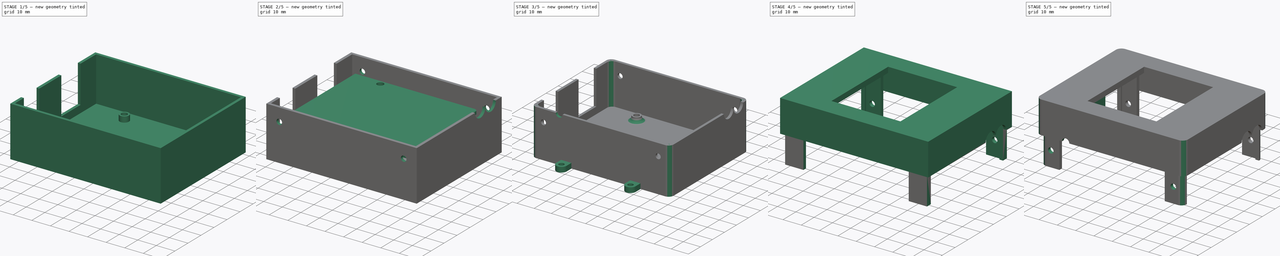
[diagram: build sequence overview — one tinted view per stage of 5, left to right]
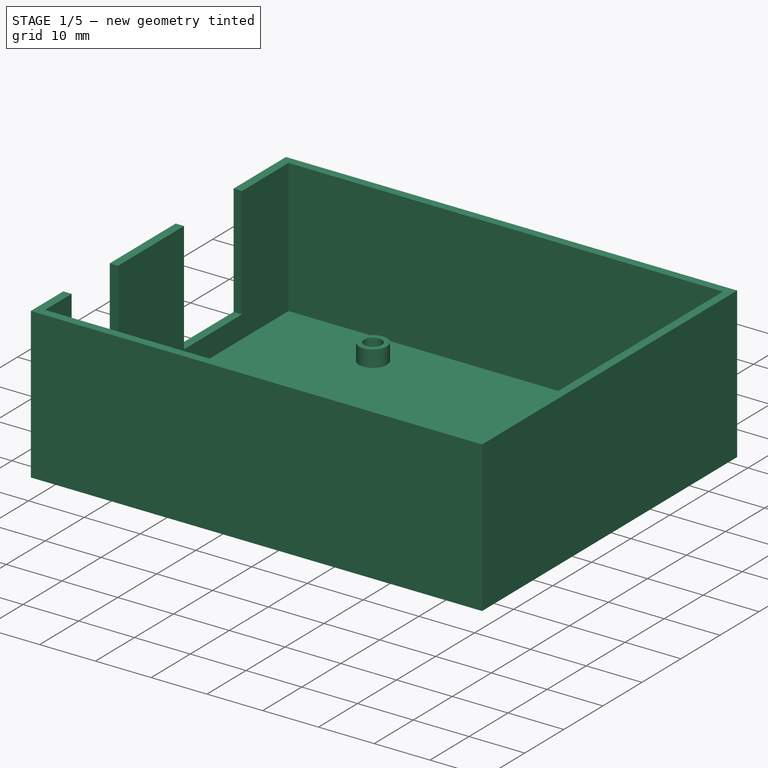
[diagram: stage 1 of 5 — iso view after this stage's code; geometry added in this stage tinted green]
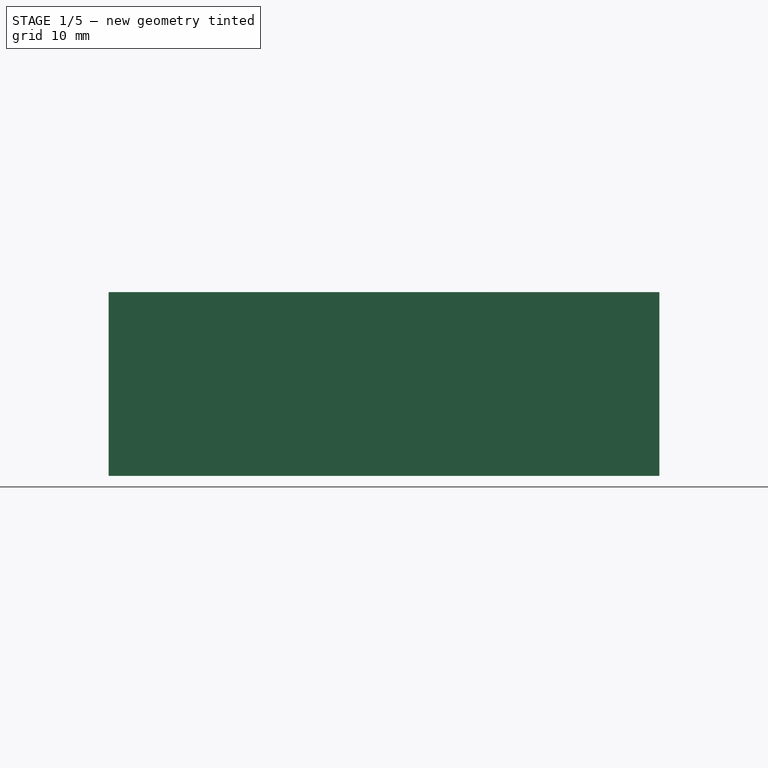
[diagram: stage 1 of 5 — front view after this stage's code; geometry added in this stage tinted green]
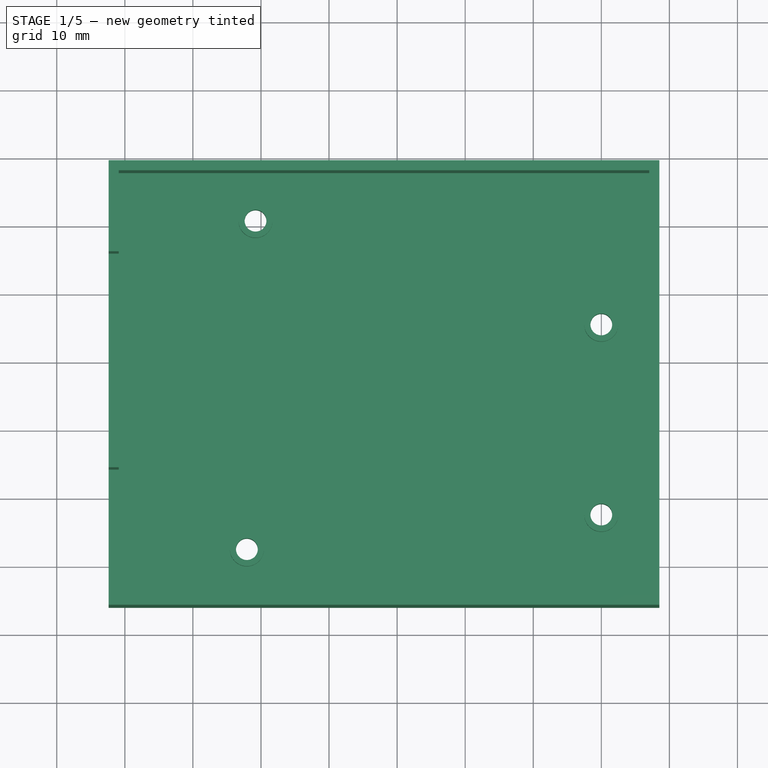
[diagram: stage 1 of 5 — top view after this stage's code; geometry added in this stage tinted green]
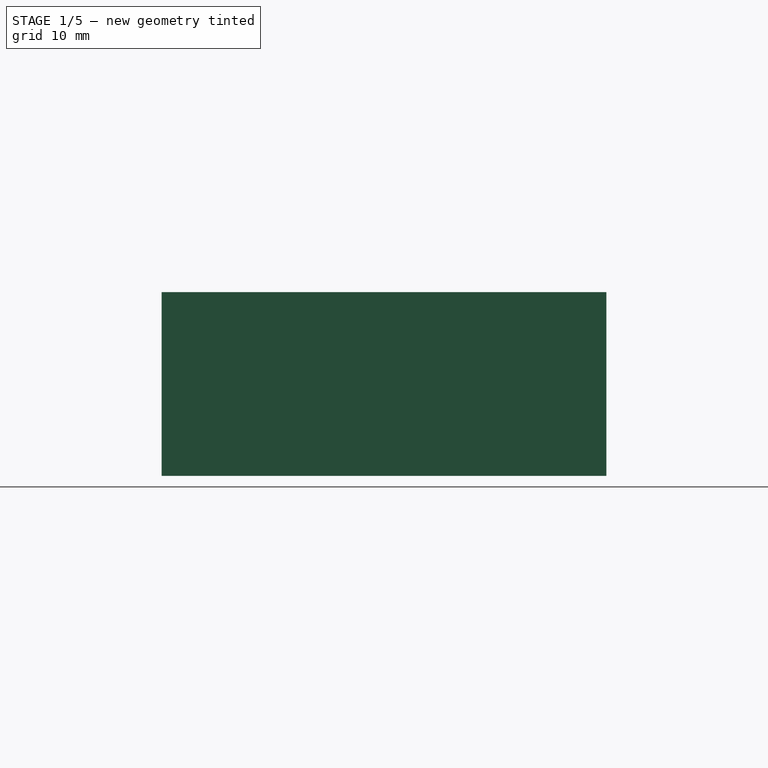
[diagram: stage 1 of 5 — right view after this stage's code; geometry added in this stage tinted green]
FCSTD DOCUMENT  (FreeCAD 0.21R33668 +26 (Git))
Label: electronics-housing
License: All rights reserved
LicenseURL: http://en.wikipedia.org/wiki/All_rights_reserved
objects: Sketcher::SketchObject×33, PartDesign::Pad×13, PartDesign::SubShapeBinder×12, PartDesign::Pocket×11, PartDesign::Fillet×6, PartDesign::AdditiveLoft×4, PartDesign::Body×3, Part::Feature×1
note: 117 computed .brp shape members not serialized (recipe doc carries the construction recipe); baked Part::Feature solids carry a one-line shape summary decoded from their .brp

FEATURE [PartDesign::SubShapeBinder] Binder002
  BindCopyOnChange = 0
  BindMode = 0
  ClaimChildren = false
  Context = -> Body001 [Binder002.]
  Fuse = false
  MakeFace = true
  OffsetFill = false
  OffsetIntersection = false
  OffsetJoinType = 0
  OffsetOpenResult = false
  PartialLoad = false
  Relative = true
  Support = -> [Part__Feature[Face2]]
  _Version = 2
FEATURE [PartDesign::SubShapeBinder] Binder003
  BindCopyOnChange = 0
  BindMode = 0
  ClaimChildren = false
  Context = -> Body001 [Binder003.]
  Fuse = false
  MakeFace = true
  OffsetFill = false
  OffsetIntersection = false
  OffsetJoinType = 0
  OffsetOpenResult = false
  PartialLoad = false
  Relative = true
  Support = -> [Part__Feature[Face818]]
  _Version = 2
FEATURE [Sketcher::SketchObject] Sketch004
  AttachmentOffset = pos=(0,0,3) rot=(0,0,1;0rad)
  ExternalGeometry = -> [Binder002,Binder003]
  FullyConstrained = true
  MapMode = 5
  Placement = pos=(0,0,-3) rot=(1,0,0;3.14159rad)
  Support = -> [Binder002]
  sketch-geometry (11):
    g0: LineSegment StartX=-72.39 StartY=6 StartZ=0 EndX=8.54 EndY=6 EndZ=0
    g1: LineSegment StartX=8.54 StartY=6 StartZ=0 EndX=8.54 EndY=-59.34 EndZ=0
    g2: LineSegment StartX=8.54 StartY=-59.34 StartZ=0 EndX=-72.39 EndY=-59.34 EndZ=0
    g3: LineSegment StartX=-72.39 StartY=-59.34 StartZ=0 EndX=-72.39 EndY=6 EndZ=0
    g4: LineSegment StartX=-1.27 StartY=-53.34 StartZ=0 EndX=-1.27 EndY=-59.34 EndZ=0
    g5: LineSegment StartX=0 StartY=0 StartZ=0 EndX=0 EndY=6 EndZ=0
    g6: Circle CenterX=-52.07 CenterY=-2.54 CenterZ=0 NormalX=0 NormalY=0 NormalZ=1 AngleXU=0 Radius=1.6
    g7: Circle CenterX=0 CenterY=-7.62 CenterZ=0 NormalX=0 NormalY=0 NormalZ=1 AngleXU=0 Radius=1.6
    g8: Circle CenterX=0 CenterY=-35.56 CenterZ=0 NormalX=0 NormalY=0 NormalZ=1 AngleXU=0 Radius=1.6
    g9: Circle CenterX=-50.8 CenterY=-50.8 CenterZ=0 NormalX=0 NormalY=0 NormalZ=1 AngleXU=0 Radius=1.6
    g10: LineSegment StartX=2.54 StartY=-37.837 StartZ=0 EndX=8.54 EndY=-37.837 EndZ=0
  constraints (29):
    c: Coincident(g0,g1)
    c: Coincident(g1,g2)
    c: Coincident(g2,g3)
    c: Coincident(g3,g0)
    c: Horizontal(g0)
    c: Horizontal(g2)
    c: Vertical(g1)
    c: Vertical(g3)
    c: Distance(g-1,g0) = 6
    c: Coincident(g4,g-3)
    c: PointOnObject(g4,g2)
    c: Coincident(g5,g-1)
    c: PointOnObject(g5,g0)
    c: Vertical(g5)
    c: Equal(g5,g4)
    c: Vertical(g4)
    c: Coincident(g6,g-5)
    c: Coincident(g7,g-6)
    c: Coincident(g8,g-7)
    c: Coincident(g9,g-8)
    c: Equal(g9,g8)
    c: Equal(g8,g7)
    c: Equal(g7,g6)
    c: Diameter(g7) = 3.2
    c: Coincident(g10,g-9)
    c: PointOnObject(g10,g1)
    c: Horizontal(g10)
    c: Distance(g10) = 6
    c: PointOnObject(g-10,g3)
FEATURE [PartDesign::Pad] Pad003
  Direction = (0,0,-1)
  Length = 3
  Length2 = 10
  Profile = -> Sketch004
  ReferenceAxis = -> Sketch004 [N_Axis]
  Type = 0
FEATURE [PartDesign::Body] Body  label="CNC-Hat"
  Group = -> [Binder,Binder001,Sketch,Pad,Sketch001,Pad001,Sketch002,Pocket,Sketch003,Pad002,Sketch007,Pad004]
  Origin = -> Origin
  Tip = -> Pad004
FEATURE [PartDesign::AdditiveLoft] AdditiveLoft
  BaseFeature = -> Pad003
  Closed = false
  Profile = -> Sketch006
  Ruled = false
  Sections = -> [Sketch005]
FEATURE [Sketcher::SketchObject] Sketch008
  ExternalGeometry = -> [AdditiveLoft]
  FullyConstrained = true
  MapMode = 5
  Placement = pos=(0,0,-3) rot=(0,0,1;0rad)
  Support = -> [AdditiveLoft]
  sketch-geometry (2):
    g0: Circle CenterX=-52.07 CenterY=2.54 CenterZ=0 NormalX=0 NormalY=0 NormalZ=1 AngleXU=0 Radius=1.6
    g1: Circle CenterX=-52.07 CenterY=2.54 CenterZ=0 NormalX=0 NormalY=0 NormalZ=1 AngleXU=0 Radius=2.5
  constraints (4):
    c: Coincident(g0,g-3)
    c: Coincident(g1,g0)
    c: Equal(g0,g-3)
    c: Equal(g1,g-4)
FEATURE [Sketcher::SketchObject] Sketch009
  ExternalGeometry = -> [Sketch008,AdditiveLoft]
  FullyConstrained = true
  MapMode = 5
  Placement = pos=(0,0,0) rot=(1,0,0;3.14159rad)
  Support = -> [Binder002]
  sketch-geometry (2):
    g0: Circle CenterX=-52.07 CenterY=-2.54 CenterZ=0 NormalX=0 NormalY=0 NormalZ=1 AngleXU=0 Radius=1.6
    g1: Circle CenterX=-52.07 CenterY=-2.54 CenterZ=0 NormalX=0 NormalY=0 NormalZ=1 AngleXU=0 Radius=2.5
  constraints (4):
    c: Coincident(g1,g0)
    c: Equal(g0,g-4)
    c: Equal(g1,g-3)
    c: Coincident(g-4,g0)
FEATURE [PartDesign::AdditiveLoft] AdditiveLoft001
  BaseFeature = -> AdditiveLoft
  Closed = false
  Profile = -> Sketch008
  Ruled = false
  Sections = -> [Sketch009]
FEATURE [Sketcher::SketchObject] Sketch010
  ExternalGeometry = -> [AdditiveLoft001]
  FullyConstrained = true
  MapMode = 5
  Placement = pos=(0,0,-3) rot=(0,0,1;0rad)
  Support = -> [AdditiveLoft001]
  sketch-geometry (2):
    g0: Circle CenterX=0 CenterY=7.62 CenterZ=0 NormalX=0 NormalY=0 NormalZ=1 AngleXU=0 Radius=1.6
    g1: Circle CenterX=0 CenterY=7.62 CenterZ=0 NormalX=0 NormalY=0 NormalZ=1 AngleXU=0 Radius=2.5
  constraints (4):
    c: Coincident(g0,g-3)
    c: Coincident(g1,g0)
    c: Equal(g0,g-3)
    c: Equal(g-5,g1)
FEATURE [Sketcher::SketchObject] Sketch011
  ExternalGeometry = -> [Sketch010]
  FullyConstrained = true
  MapMode = 5
  Placement = pos=(0,0,0) rot=(1,0,0;3.14159rad)
  Support = -> [Binder002]
  sketch-geometry (2):
    g0: Circle CenterX=0 CenterY=-7.62 CenterZ=0 NormalX=0 NormalY=0 NormalZ=1 AngleXU=0 Radius=1.6
    g1: Circle CenterX=0 CenterY=-7.62 CenterZ=0 NormalX=0 NormalY=0 NormalZ=1 AngleXU=0 Radius=2.5
  constraints (4):
    c: Coincident(g0,g-4)
    c: Equal(g0,g-3)
    c: Equal(g1,g-4)
    c: Coincident(g1,g0)
FEATURE [PartDesign::AdditiveLoft] AdditiveLoft002
  BaseFeature = -> AdditiveLoft001
  Closed = false
  Profile = -> Sketch011
  Ruled = false
  Sections = -> [Sketch010]
FEATURE [Sketcher::SketchObject] Sketch012
  ExternalGeometry = -> [AdditiveLoft002]
  FullyConstrained = true
  MapMode = 5
  Placement = pos=(0,0,-3) rot=(0,0,1;0rad)
  Support = -> [AdditiveLoft002]
  sketch-geometry (2):
    g0: Circle CenterX=-50.8 CenterY=50.8 CenterZ=0 NormalX=0 NormalY=0 NormalZ=1 AngleXU=0 Radius=1.6
    g1: Circle CenterX=-50.8 CenterY=50.8 CenterZ=0 NormalX=0 NormalY=0 NormalZ=1 AngleXU=0 Radius=2.5
  constraints (4):
    c: Coincident(g0,g-4)
    c: Coincident(g1,g0)
    c: Equal(g0,g-4)
    c: Equal(g1,g-3)
FEATURE [Sketcher::SketchObject] Sketch013
  ExternalGeometry = -> [Sketch012,AdditiveLoft002]
  FullyConstrained = true
  MapMode = 5
  Placement = pos=(0,0,0) rot=(1,0,0;3.14159rad)
  Support = -> [Binder002]
  sketch-geometry (2):
    g0: Circle CenterX=-50.8 CenterY=-50.8 CenterZ=0 NormalX=0 NormalY=0 NormalZ=1 AngleXU=0 Radius=1.6
    g1: Circle CenterX=-50.8 CenterY=-50.8 CenterZ=0 NormalX=0 NormalY=0 NormalZ=1 AngleXU=0 Radius=2.5
  constraints (4):
    c: Coincident(g0,g-3)
    c: Coincident(g1,g0)
    c: Equal(g0,g-3)
    c: Equal(g1,g-4)
FEATURE [PartDesign::AdditiveLoft] AdditiveLoft003
  BaseFeature = -> AdditiveLoft002
  Closed = false
  Profile = -> Sketch012
  Ruled = false
  Sections = -> [Sketch013]
FEATURE [Sketcher::SketchObject] Sketch014
  ExternalGeometry = -> [AdditiveLoft003]
  FullyConstrained = true
  MapMode = 5
  Placement = pos=(0,0,-3) rot=(0,0,1;0rad)
  Support = -> [AdditiveLoft003]
  sketch-geometry (12):
    g0: LineSegment StartX=-72.39 StartY=59.34 StartZ=0 EndX=8.54 EndY=59.34 EndZ=0
    g1: LineSegment StartX=8.54 StartY=59.34 StartZ=0 EndX=8.54 EndY=-6 EndZ=0
    g2: LineSegment StartX=8.54 StartY=-6 StartZ=0 EndX=-72.39 EndY=-6 EndZ=0
    g3: LineSegment StartX=-72.39 StartY=-6 StartZ=0 EndX=-72.39 EndY=59.34 EndZ=0
    g4: LineSegment StartX=-70.89 StartY=-4.5 StartZ=0 EndX=-70.89 EndY=57.84 EndZ=0
    g5: LineSegment StartX=-70.89 StartY=57.84 StartZ=0 EndX=7.04 EndY=57.84 EndZ=0
    g6: LineSegment StartX=7.04 StartY=57.84 StartZ=0 EndX=7.04 EndY=-4.5 EndZ=0
    g7: LineSegment StartX=7.04 StartY=-4.5 StartZ=0 EndX=-70.89 EndY=-4.5 EndZ=0
    g8: LineSegment StartX=7.04 StartY=-4.5 StartZ=0 EndX=7.04 EndY=-6 EndZ=0
    g9: LineSegment StartX=7.04 StartY=-4.5 StartZ=0 EndX=8.54 EndY=-4.5 EndZ=0
    g10: LineSegment StartX=-70.89 StartY=57.84 StartZ=0 EndX=-70.89 EndY=59.34 EndZ=0
    g11: LineSegment StartX=-70.89 StartY=57.84 StartZ=0 EndX=-72.39 EndY=57.84 EndZ=0
  constraints (32):
    c: Coincident(g0,g-4)
    c: Coincident(g0,g-5)
    c: Coincident(g1,g0)
    c: Coincident(g1,g-6)
    c: Coincident(g2,g1)
    c: Coincident(g2,g-6)
    c: Coincident(g3,g2)
    c: Coincident(g3,g0)
    c: Vertical(g4)
    c: Coincident(g5,g4)
    c: Horizontal(g5)
    c: Coincident(g6,g5)
    c: Vertical(g6)
    c: Coincident(g7,g6)
    c: Coincident(g7,g4)
    c: Horizontal(g7)
    c: Coincident(g8,g6)
    c: PointOnObject(g8,g2)
    c: Vertical(g8)
    c: Coincident(g9,g6)
    c: PointOnObject(g9,g1)
    c: Horizontal(g9)
    c: Equal(g9,g8)
    c: Coincident(g10,g4)
    c: PointOnObject(g10,g0)
    c: Vertical(g10)
    c: Coincident(g11,g4)
    c: PointOnObject(g11,g3)
    c: Horizontal(g11)
    c: Equal(g11,g10)
    c: Equal(g10,g9)
    c: Distance(g10) = 1.5
FEATURE [PartDesign::Pad] Pad005
  BaseFeature = -> AdditiveLoft003
  Direction = (0,0,1)
  Length = 4
  Length2 = 10
  Profile = -> Sketch014
  ReferenceAxis = -> Sketch014 [N_Axis]
  Type = 0
FEATURE [PartDesign::SubShapeBinder] Binder004
  BindCopyOnChange = 0
  BindMode = 0
  ClaimChildren = false
  Context = -> Body001 [Binder004.]
  Fuse = false
  MakeFace = true
  OffsetFill = false
  OffsetIntersection = false
  OffsetJoinType = 0
  OffsetOpenResult = false
  PartialLoad = false
  Relative = true
  Support = -> [Part__Feature[Face799]]
  _Version = 2
FEATURE [Sketcher::SketchObject] Sketch015
  ExternalGeometry = -> [Binder003,Pad005,Binder004]
  FullyConstrained = true
  MapMode = 5
  Placement = pos=(0,0,1) rot=(0,0,1;0rad)
  Support = -> [Pad005]
  sketch-geometry (32):
    g0: LineSegment StartX=-67.564 StartY=3.81 StartZ=0 EndX=-72.39 EndY=3.81 EndZ=0
    g1: LineSegment StartX=-67.564 StartY=12.7 StartZ=0 EndX=-72.39 EndY=12.7 EndZ=0
    g2: LineSegment StartX=-72.39 StartY=2.31 StartZ=0 EndX=-72.39 EndY=-6 EndZ=0
    g3: LineSegment StartX=-72.39 StartY=-6 StartZ=0 EndX=8.54 EndY=-6 EndZ=0
    g4: LineSegment StartX=8.54 StartY=-6 StartZ=0 EndX=8.54 EndY=59.34 EndZ=0
    g5: LineSegment StartX=8.54 StartY=59.34 StartZ=0 EndX=-72.39 EndY=59.34 EndZ=0
    g6: LineSegment StartX=-72.39 StartY=59.34 StartZ=0 EndX=-72.39 EndY=45.95 EndZ=0
    g7: LineSegment StartX=-70.89 StartY=12.7 StartZ=0 EndX=-72.39 EndY=12.7 EndZ=0
    g8: LineSegment StartX=-72.39 StartY=45.95 StartZ=0 EndX=-70.89 EndY=45.95 EndZ=0
    g9: LineSegment StartX=-70.89 StartY=45.95 StartZ=0 EndX=-70.89 EndY=57.84 EndZ=0
    g10: LineSegment StartX=-70.89 StartY=57.84 StartZ=0 EndX=7.04 EndY=57.84 EndZ=0
    g11: LineSegment StartX=7.04 StartY=57.84 StartZ=0 EndX=7.04 EndY=-4.5 EndZ=0
    g12: LineSegment StartX=7.04 StartY=-4.5 StartZ=0 EndX=-70.89 EndY=-4.5 EndZ=0
    g13: LineSegment StartX=-70.89 StartY=-4.5 StartZ=0 EndX=-70.89 EndY=2.31 EndZ=0
    g14: LineSegment StartX=-70.89 StartY=2.31 StartZ=0 EndX=-72.39 EndY=2.31 EndZ=0
    g15: LineSegment StartX=7.04 StartY=57.84 StartZ=0 EndX=8.54 EndY=57.84 EndZ=0
    g16: LineSegment StartX=7.04 StartY=57.84 StartZ=0 EndX=7.04 EndY=59.34 EndZ=0
    g17: LineSegment StartX=-70.89 StartY=57.84 StartZ=0 EndX=-70.89 EndY=59.34 EndZ=0
    g18: LineSegment StartX=-70.89 StartY=57.84 StartZ=0 EndX=-72.39 EndY=57.84 EndZ=0
    g19: LineSegment StartX=7.04 StartY=-4.5 StartZ=0 EndX=7.04 EndY=-6 EndZ=0
    g20: LineSegment StartX=7.04 StartY=-4.5 StartZ=0 EndX=8.54 EndY=-4.5 EndZ=0
    g21: LineSegment StartX=-70.89 StartY=-4.5 StartZ=0 EndX=-70.89 EndY=-6 EndZ=0
    g22: LineSegment StartX=-70.89 StartY=-4.5 StartZ=0 EndX=-72.39 EndY=-4.5 EndZ=0
    g23: LineSegment StartX=-70.89 StartY=31.1009 StartZ=0 EndX=-70.89 EndY=14.2 EndZ=0
    g24: LineSegment StartX=-70.89 StartY=14.2 StartZ=0 EndX=-72.39 EndY=14.2 EndZ=0
    g25: LineSegment StartX=-72.39 StartY=14.2 StartZ=0 EndX=-72.39 EndY=31.1009 EndZ=0
    g26: LineSegment StartX=-72.39 StartY=45.95 StartZ=0 EndX=-72.39 EndY=44.45 EndZ=0
    g27: LineSegment StartX=-72.39 StartY=31.1009 StartZ=0 EndX=-70.89 EndY=31.1009 EndZ=0
    g28: LineSegment StartX=-72.39 StartY=31.1009 StartZ=0 EndX=-70.89 EndY=32.6009 EndZ=0
    g29: LineSegment StartX=-72.39 StartY=45.95 StartZ=0 EndX=-70.89 EndY=44.45 EndZ=0
    g30: LineSegment StartX=-72.39 StartY=14.2 StartZ=0 EndX=-70.89 EndY=12.7 EndZ=0
    g31: LineSegment StartX=-72.39 StartY=2.31 StartZ=0 EndX=-70.89 EndY=3.81 EndZ=0
  constraints (89):
    c: Coincident(g0,g-9)
    c: Horizontal(g0)
    c: Coincident(g1,g-9)
    c: Horizontal(g1)
    c: Coincident(g2,g-8)
    c: Coincident(g3,g2)
    c: Coincident(g3,g-7)
    c: Coincident(g4,g3)
    c: Coincident(g4,g-6)
    c: Coincident(g5,g4)
    c: Coincident(g5,g-8)
    c: Coincident(g6,g5)
    c: Horizontal(g7)
    c: Coincident(g9,g8)
    c: Coincident(g10,g9)
    c: Horizontal(g10)
    c: Coincident(g11,g10)
    c: Vertical(g11)
    c: Coincident(g12,g11)
    c: Horizontal(g12)
    c: Coincident(g13,g12)
    c: Vertical(g13)
    c: Coincident(g14,g13)
    c: Coincident(g15,g10)
    c: PointOnObject(g15,g4)
    c: Horizontal(g15)
    c: Coincident(g16,g10)
    c: PointOnObject(g16,g5)
    c: Vertical(g16)
    c: Coincident(g17,g9)
    c: PointOnObject(g17,g5)
    c: Coincident(g18,g9)
    c: PointOnObject(g18,g6)
    c: Coincident(g19,g11)
    c: PointOnObject(g19,g3)
    c: Coincident(g20,g11)
    c: PointOnObject(g20,g4)
    c: Horizontal(g20)
    c: Vertical(g19)
    c: Coincident(g21,g12)
    c: PointOnObject(g21,g3)
    c: Vertical(g21)
    c: Coincident(g22,g12)
    c: PointOnObject(g22,g2)
    c: Horizontal(g22)
    c: Equal(g22,g21)
    c: Equal(g19,g20)
    c: Equal(g15,g16)
    c: Equal(g17,g18)
    c: Coincident(g7,g1)
    c: Coincident(g23,g24)
    c: Coincident(g24,g25)
    c: Horizontal(g24)
    c: Vertical(g23)
    c: Vertical(g25)
    c: PointOnObject(g25,g-8)
    c: PointOnObject(g23,g-10)
    c: Coincident(g6,g8)
    c: Vertical(g9)
    c: Vertical(g6)
    c: Horizontal(g8)
    c: Distance(g-3,g6) = 1.5
    c: Coincident(g26,g6)
    c: Coincident(g26,g-3)
    c: Coincident(g27,g25)
    c: Coincident(g27,g23)
    c: Horizontal(g27)
    c: Coincident(g9,g-10)
    c: Horizontal(g18)
    c: PointOnObject(g0,g-8)
    c: Coincident(g14,g2)
    c: Horizontal(g14)
    c: Vertical(g2)
    c: PointOnObject(g1,g-8)
    c: Coincident(g28,g25)
    c: PointOnObject(g28,g-10)
    c: PointOnObject(g28,g-4)
    c: Coincident(g29,g6)
    c: PointOnObject(g29,g-10)
    c: PointOnObject(g29,g-3)
    c: Equal(g29,g28)
    c: Coincident(g30,g24)
    c: Coincident(g30,g7)
    c: Coincident(g31,g2)
    c: PointOnObject(g31,g-10)
    c: PointOnObject(g31,g0)
    c: Equal(g31,g30)
    c: Equal(g30,g28)
    c: PointOnObject(g7,g-10)
FEATURE [PartDesign::SubShapeBinder] Binder005
  BindCopyOnChange = 0
  BindMode = 0
  ClaimChildren = false
  Context = -> Body001 [Binder005.]
  Fuse = false
  MakeFace = true
  OffsetFill = false
  OffsetIntersection = false
  OffsetJoinType = 0
  OffsetOpenResult = false
  PartialLoad = false
  Relative = true
  Support = -> [Body[Pad004.Face20]]
  _Version = 2
FEATURE [PartDesign::Pad] Pad006
  BaseFeature = -> Pad005
  Direction = (0,0,1)
  Length = 20
  Length2 = 10
  Profile = -> Sketch015
  ReferenceAxis = -> Sketch015 [N_Axis]
  Type = 0
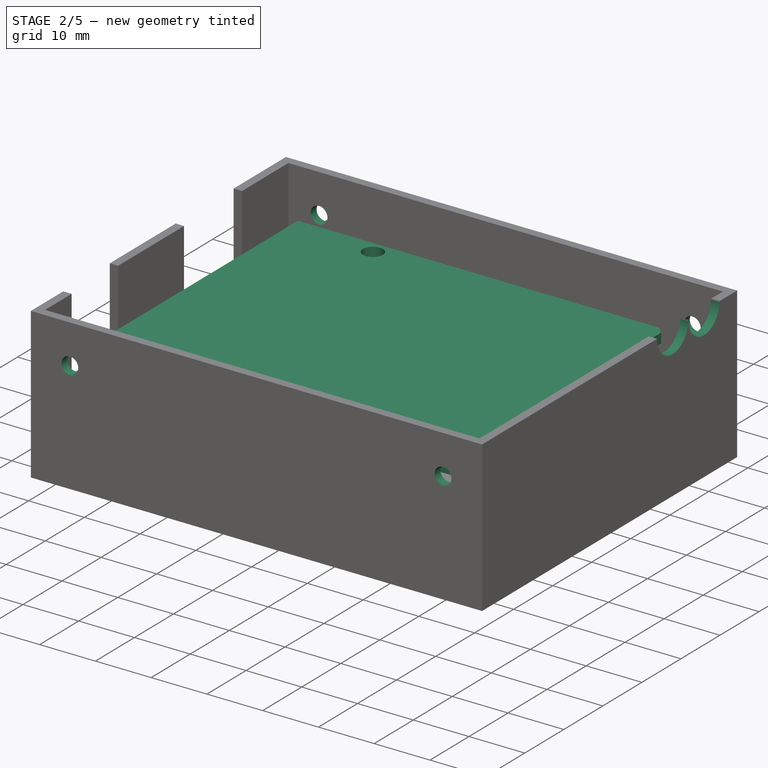
[diagram: stage 2 of 5 — iso view after this stage's code; geometry added in this stage tinted green]
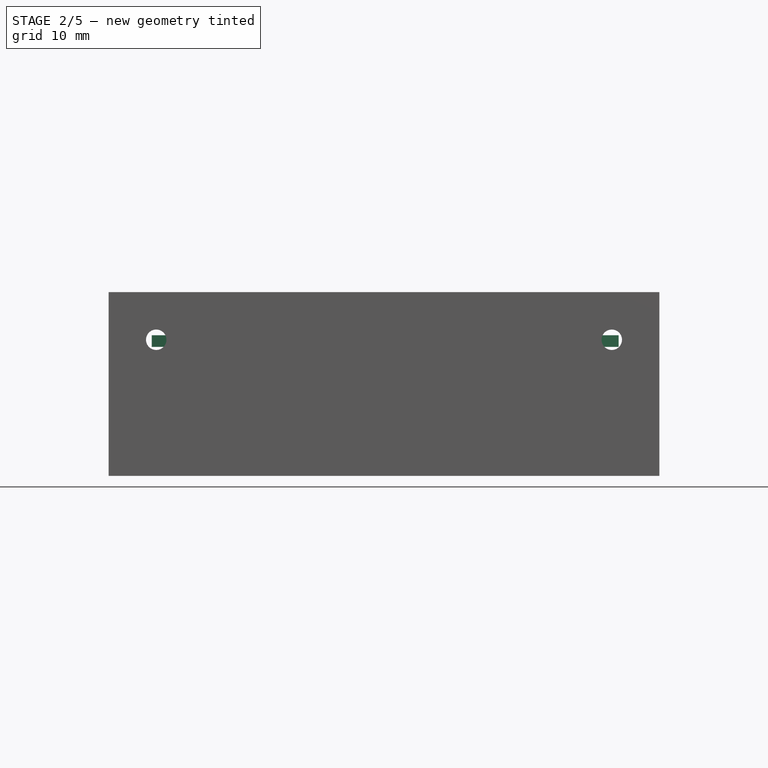
[diagram: stage 2 of 5 — front view after this stage's code; geometry added in this stage tinted green]
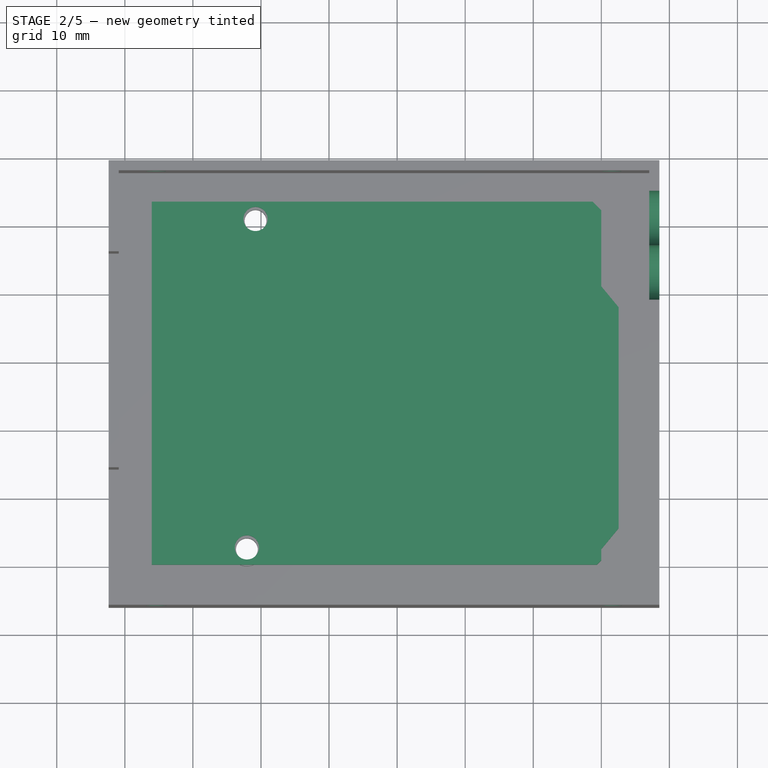
[diagram: stage 2 of 5 — top view after this stage's code; geometry added in this stage tinted green]
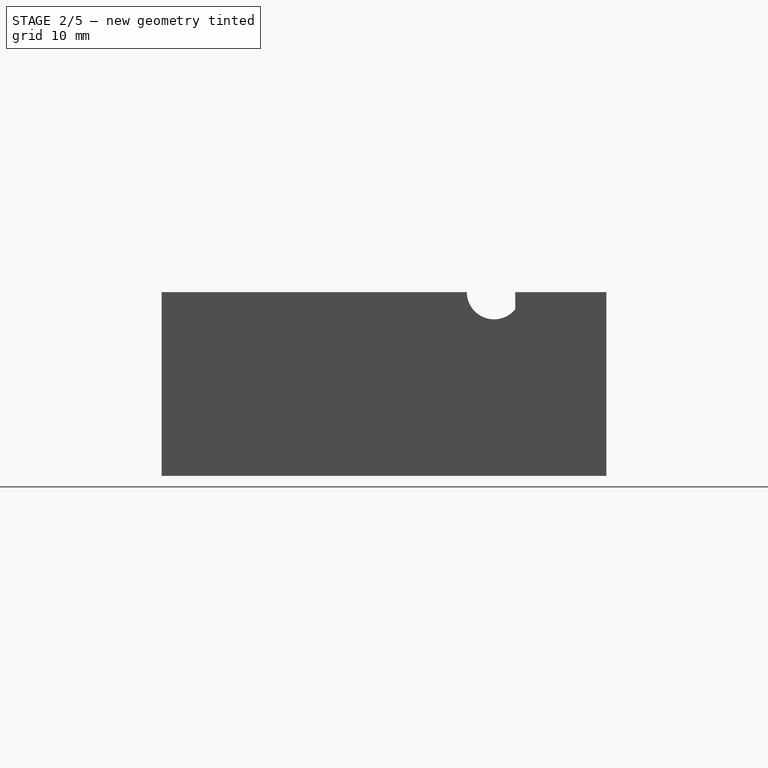
[diagram: stage 2 of 5 — right view after this stage's code; geometry added in this stage tinted green]
FEATURE [Part::Feature] Part__Feature  label="Arduino"
  Placement = pos=(0,0,0) rot=(1,0,0;1.5708rad)
  shape: bbox 74.93 x 53.34 x 15.09 mm, 840 faces (baked)
FEATURE [PartDesign::SubShapeBinder] Binder
  BindCopyOnChange = 0
  BindMode = 0
  ClaimChildren = false
  Context = -> Body [Binder.]
  Fuse = false
  MakeFace = true
  OffsetFill = false
  OffsetIntersection = false
  OffsetJoinType = 0
  OffsetOpenResult = false
  PartialLoad = false
  Relative = true
  Support = -> [Part__Feature[Face840]]
  _Version = 2
FEATURE [PartDesign::SubShapeBinder] Binder001
  BindCopyOnChange = 0
  BindMode = 0
  ClaimChildren = false
  Context = -> Body [Binder001.]
  Fuse = false
  MakeFace = true
  OffsetFill = false
  OffsetIntersection = false
  OffsetJoinType = 0
  OffsetOpenResult = false
  PartialLoad = false
  Relative = true
  Support = -> [Part__Feature[Face564,Face643,Face358,Face473]]
  _Version = 2
FEATURE [Sketcher::SketchObject] Sketch
  ExternalGeometry = -> [Binder001]
  FullyConstrained = true
  MapMode = 5
  Placement = pos=(0,0,10.414) rot=(0,0,1;0rad)
  Support = -> [Binder001]
  sketch-geometry (4):
    g0: LineSegment StartX=-39.116 StartY=3.556 StartZ=0 EndX=-1.143 EndY=3.556 EndZ=0
    g1: LineSegment StartX=-1.143 StartY=3.556 StartZ=0 EndX=-1.143 EndY=1.27 EndZ=0
    g2: LineSegment StartX=-1.143 StartY=1.27 StartZ=0 EndX=-39.116 EndY=1.27 EndZ=0
    g3: LineSegment StartX=-39.116 StartY=1.27 StartZ=0 EndX=-39.116 EndY=3.556 EndZ=0
  constraints (10):
    c: Coincident(g0,g1)
    c: Coincident(g1,g2)
    c: Coincident(g2,g3)
    c: Coincident(g3,g0)
    c: Horizontal(g0)
    c: Horizontal(g2)
    c: Vertical(g1)
    c: Vertical(g3)
    c: Coincident(g0,g-10)
    c: Coincident(g1,g-8)
FEATURE [PartDesign::Pad] Pad
  Direction = (0,-2e-16,1)
  Length = 2.54
  Length2 = 10
  Profile = -> Sketch
  ReferenceAxis = -> Sketch [N_Axis]
  Type = 0
FEATURE [Sketcher::SketchObject] Sketch001
  ExternalGeometry = -> [Binder]
  FullyConstrained = true
  MapMode = 5
  Placement = pos=(0,0,12.954) rot=(0,0,1;0rad)
  Support = -> [Pad]
  sketch-geometry (10):
    g0: LineSegment StartX=-66.04 StartY=53.34 StartZ=0 EndX=-1.27 EndY=53.34 EndZ=0
    g1: LineSegment StartX=-1.27 StartY=53.34 StartZ=0 EndX=0 EndY=52.07 EndZ=0
    g2: LineSegment StartX=0 StartY=52.07 StartZ=0 EndX=0 EndY=40.903 EndZ=0
    g3: LineSegment StartX=0 StartY=40.903 StartZ=0 EndX=2.54 EndY=37.837 EndZ=0
    g4: LineSegment StartX=2.54 StartY=37.837 StartZ=0 EndX=2.54 EndY=5.34303 EndZ=0
    g5: LineSegment StartX=2.54 StartY=5.34303 StartZ=0 EndX=0 EndY=2.27697 EndZ=0
    g6: LineSegment StartX=0 StartY=2.27697 StartZ=0 EndX=-1e-16 EndY=0.635 EndZ=0
    g7: LineSegment StartX=-0.635 StartY=-3e-16 StartZ=0 EndX=-66.04 EndY=0 EndZ=0
    g8: LineSegment StartX=-66.04 StartY=0 StartZ=0 EndX=-66.04 EndY=53.34 EndZ=0
    g9: LineSegment StartX=-1e-16 StartY=0.635 StartZ=0 EndX=-0.635 EndY=-3e-16 EndZ=0
  constraints (22):
    c: Coincident(g0,g-3)
    c: Coincident(g1,g0)
    c: Coincident(g1,g-6)
    c: Coincident(g2,g1)
    c: Coincident(g2,g-6)
    c: Coincident(g3,g2)
    c: Coincident(g3,g-7)
    c: Coincident(g4,g3)
    c: Coincident(g4,g-7)
    c: Coincident(g5,g4)
    c: Coincident(g5,g-10)
    c: Coincident(g6,g5)
    c: PointOnObject(g7,g-1)
    c: Coincident(g8,g7)
    c: Vertical(g8)
    c: PointOnObject(g-8,g8)
    c: Coincident(g9,g6)
    c: Coincident(g9,g7)
    c: Coincident(g6,g-10)
    c: Coincident(g7,g-4)
    c: Coincident(g0,g8)
    c: Horizontal(g0)
FEATURE [PartDesign::Pad] Pad001
  BaseFeature = -> Pad
  Direction = (0,0,1)
  Length = 1.7
  Length2 = 10
  Profile = -> Sketch001
  ReferenceAxis = -> Sketch001 [N_Axis]
  Type = 0
FEATURE [Sketcher::SketchObject] Sketch002
  ExternalGeometry = -> [Binder]
  FullyConstrained = true
  MapMode = 5
  Placement = pos=(0,0,14.654) rot=(0,0,1;0rad)
  Support = -> [Pad001]
  sketch-geometry (2):
    g0: Circle CenterX=-52.07 CenterY=2.54 CenterZ=0 NormalX=0 NormalY=0 NormalZ=1 AngleXU=0 Radius=1.778
    g1: Circle CenterX=-50.8 CenterY=50.8 CenterZ=0 NormalX=0 NormalY=0 NormalZ=1 AngleXU=0 Radius=1.778
  constraints (4):
    c: Coincident(g0,g-4)
    c: Coincident(g1,g-3)
    c: Equal(g0,g-4)
    c: Equal(g1,g-3)
FEATURE [PartDesign::Pocket] Pocket
  BaseFeature = -> Pad001
  Direction = (0,0,-1)
  Length = 5
  Length2 = 5
  Profile = -> Sketch002
  ReferenceAxis = -> Sketch002 [N_Axis]
  Type = 0
FEATURE [Sketcher::SketchObject] Sketch017
  ExternalGeometry = -> [Pad006]
  FullyConstrained = true
  MapMode = 5
  Placement = pos=(0,0,-6) rot=(1,0,0;3.14159rad)
  Support = -> [Pad006]
  sketch-geometry (4):
    g0: Circle CenterX=-50.8 CenterY=-50.8 CenterZ=0 NormalX=0 NormalY=0 NormalZ=1 AngleXU=0 Radius=2.65
    g1: Circle CenterX=-52.07 CenterY=-2.54 CenterZ=0 NormalX=0 NormalY=0 NormalZ=1 AngleXU=0 Radius=2.65
    g2: Circle CenterX=0 CenterY=-7.62 CenterZ=0 NormalX=0 NormalY=0 NormalZ=1 AngleXU=0 Radius=2.65
    g3: Circle CenterX=0 CenterY=-35.56 CenterZ=0 NormalX=0 NormalY=0 NormalZ=1 AngleXU=0 Radius=2.65
  constraints (8):
    c: Coincident(g0,g-6)
    c: Coincident(g1,g-5)
    c: Coincident(g2,g-4)
    c: Coincident(g3,g-3)
    c: Equal(g3,g2)
    c: Equal(g2,g1)
    c: Equal(g1,g0)
    c: Diameter(g0) = 5.3
FEATURE [PartDesign::Pocket] Pocket001
  BaseFeature = -> Pad006
  Direction = (0,0,1)
  Length = 2
  Length2 = 5
  Profile = -> Sketch017
  ReferenceAxis = -> Sketch017 [N_Axis]
  Type = 0
FEATURE [Sketcher::SketchObject] Sketch021
  ExternalGeometry = -> [Pocket001]
  FullyConstrained = true
  MapMode = 5
  Placement = pos=(8.54,0,0) rot=(0.57735,0.57735,0.57735;2.0944rad)
  Support = -> [Pocket001]
  sketch-geometry (4):
    g0: Circle CenterX=50.84 CenterY=21 CenterZ=0 NormalX=0 NormalY=0 NormalZ=1 AngleXU=0 Radius=4
    g1: Circle CenterX=42.84 CenterY=21 CenterZ=0 NormalX=0 NormalY=0 NormalZ=1 AngleXU=0 Radius=4
    g2: GeomPoint X=46.84 Y=21 Z=0
    g3: GeomPoint X=54.84 Y=21 Z=0
  constraints (10):
    c: PointOnObject(g0,g-3)
    c: PointOnObject(g1,g-3)
    c: Equal(g0,g1)
    c: Diameter(g0) = 8
    c: PointOnObject(g2,g1)
    c: PointOnObject(g2,g-3)
    c: PointOnObject(g2,g0)
    c: PointOnObject(g3,g0)
    c: PointOnObject(g3,g-3)
    c: Distance(g3,g-5) = 3
FEATURE [PartDesign::Pocket] Pocket004
  BaseFeature = -> Pocket001
  Direction = (-1,0,0)
  Length = 5
  Length2 = 5
  Profile = -> Sketch021
  ReferenceAxis = -> Sketch021 [N_Axis]
  Type = 0
FEATURE [Sketcher::SketchObject] Sketch023
  ExternalGeometry = -> [Pocket004]
  FullyConstrained = true
  MapMode = 5
  Placement = pos=(0,59.34,0) rot=(0,0.707107,0.707107;3.14159rad)
  Support = -> [Pocket004]
  sketch-geometry (6):
    g0: Circle CenterX=-1.54 CenterY=14 CenterZ=0 NormalX=0 NormalY=0 NormalZ=1 AngleXU=0 Radius=1.5
    g1: Circle CenterX=65.39 CenterY=14 CenterZ=0 NormalX=0 NormalY=0 NormalZ=1 AngleXU=0 Radius=1.5
    g2: LineSegment StartX=-1.54 StartY=14 StartZ=0 EndX=-8.54 EndY=14 EndZ=0
    g3: LineSegment StartX=65.39 StartY=14 StartZ=0 EndX=72.39 EndY=14 EndZ=0
    g4: LineSegment StartX=-1.54 StartY=14 StartZ=0 EndX=65.39 EndY=14 EndZ=0
    g5: LineSegment StartX=65.39 StartY=14 StartZ=0 EndX=65.39 EndY=21 EndZ=0
  constraints (17):
    c: Equal(g1,g0)
    c: Coincident(g2,g0)
    c: PointOnObject(g2,g-3)
    c: Horizontal(g2)
    c: Coincident(g3,g1)
    c: PointOnObject(g3,g-4)
    c: Horizontal(g3)
    c: Equal(g3,g2)
    c: Distance(g2) = 7
    c: Coincident(g4,g0)
    c: Coincident(g4,g1)
    c: Horizontal(g4)
    c: Coincident(g5,g1)
    c: PointOnObject(g5,g-5)
    c: Vertical(g5)
    c: Equal(g3,g5)
    c: Diameter(g0) = 3
FEATURE [PartDesign::Pocket] Pocket005
  BaseFeature = -> Pocket004
  Direction = (0,-1,2e-16)
  Length = 5
  Length2 = 5
  Profile = -> Sketch023
  ReferenceAxis = -> Sketch023 [N_Axis]
  Type = 0
FEATURE [Sketcher::SketchObject] Sketch024
  ExternalGeometry = -> [Pocket005]
  FullyConstrained = true
  MapMode = 5
  Placement = pos=(1e-16,-6,0) rot=(1,0,0;1.5708rad)
  Support = -> [Pocket005]
  sketch-geometry (6):
    g0: Circle CenterX=-65.39 CenterY=14 CenterZ=0 NormalX=0 NormalY=0 NormalZ=1 AngleXU=0 Radius=1.5
    g1: Circle CenterX=1.54 CenterY=14 CenterZ=0 NormalX=0 NormalY=0 NormalZ=1 AngleXU=0 Radius=1.5
    g2: LineSegment StartX=-72.39 StartY=14 StartZ=0 EndX=-65.39 EndY=14 EndZ=0
    g3: LineSegment StartX=1.54 StartY=14 StartZ=0 EndX=8.54 EndY=14 EndZ=0
    g4: LineSegment StartX=-65.39 StartY=14 StartZ=0 EndX=-65.39 EndY=21 EndZ=0
    g5: LineSegment StartX=1.54 StartY=14 StartZ=0 EndX=1.54 EndY=21 EndZ=0
  constraints (18):
    c: Equal(g1,g0)
    c: PointOnObject(g2,g-4)
    c: Coincident(g2,g0)
    c: Horizontal(g2)
    c: Coincident(g3,g1)
    c: PointOnObject(g3,g-3)
    c: Horizontal(g3)
    c: Equal(g3,g2)
    c: Coincident(g4,g0)
    c: PointOnObject(g4,g-5)
    c: Vertical(g4)
    c: Coincident(g5,g1)
    c: PointOnObject(g5,g-5)
    c: Vertical(g5)
    c: Equal(g5,g3)
    c: Equal(g4,g2)
    c: Distance(g2) = 7
    c: Diameter(g0) = 3
FEATURE [PartDesign::Pocket] Pocket006
  BaseFeature = -> Pocket005
  Direction = (0,1,-2e-16)
  Length = 5
  Length2 = 5
  Profile = -> Sketch024
  ReferenceAxis = -> Sketch024 [N_Axis]
  Type = 0
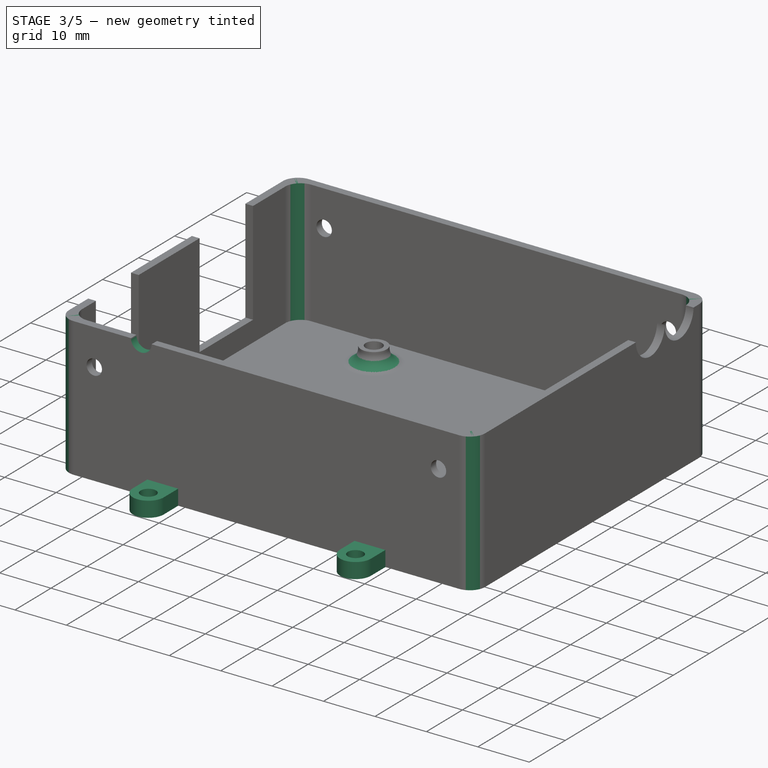
[diagram: stage 3 of 5 — iso view after this stage's code; geometry added in this stage tinted green]
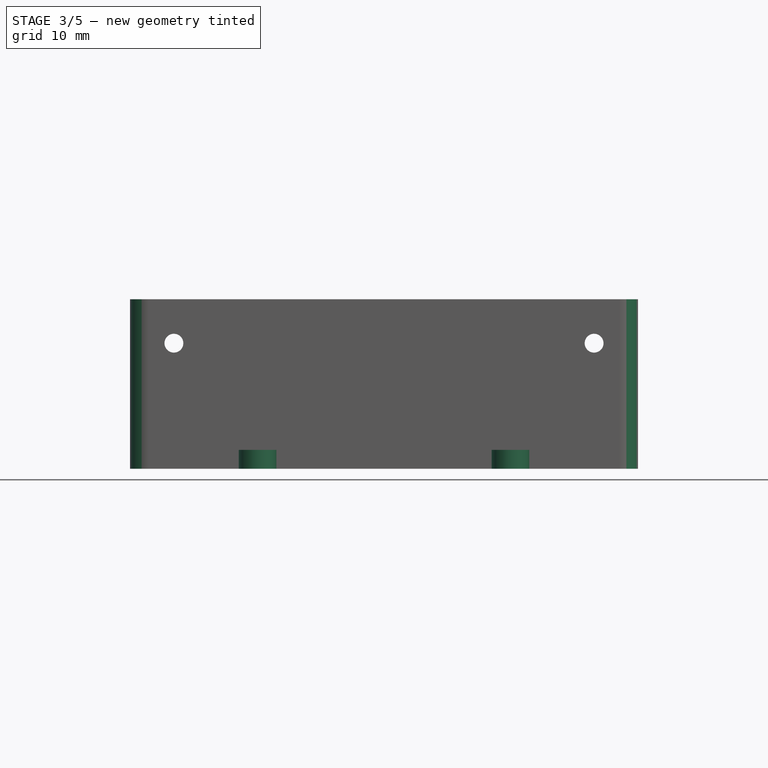
[diagram: stage 3 of 5 — front view after this stage's code; geometry added in this stage tinted green]
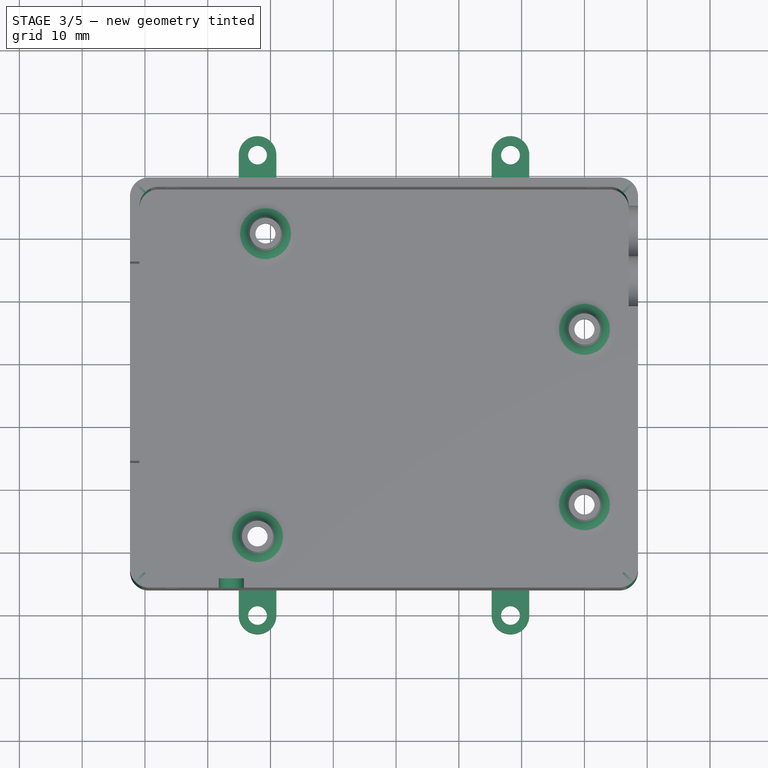
[diagram: stage 3 of 5 — top view after this stage's code; geometry added in this stage tinted green]
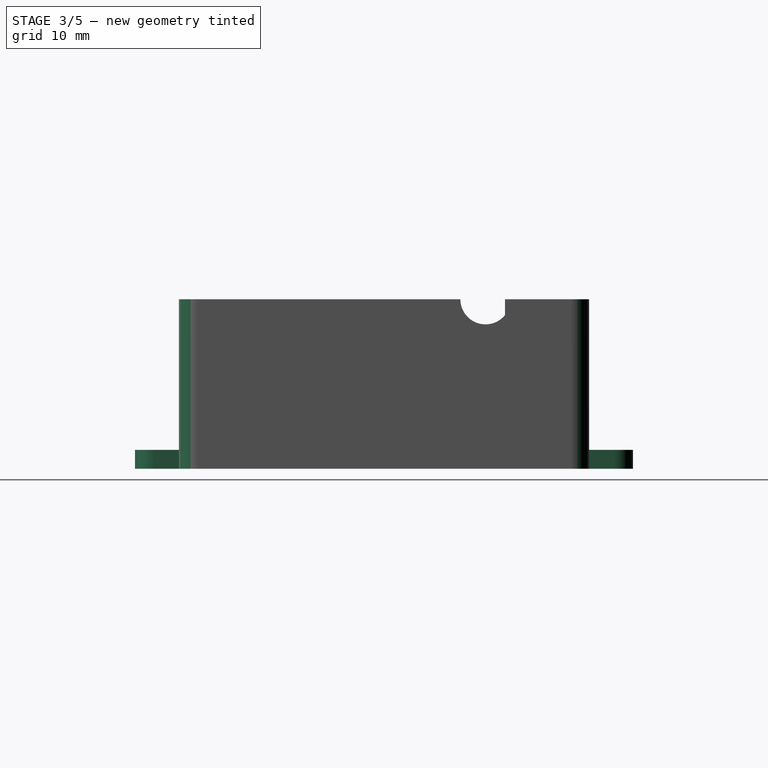
[diagram: stage 3 of 5 — right view after this stage's code; geometry added in this stage tinted green]
FEATURE [Sketcher::SketchObject] Sketch003
  ExternalGeometry = -> [Pocket]
  FullyConstrained = true
  MapMode = 5
  Placement = pos=(0,0,14.654) rot=(0,0,1;0rad)
  Support = -> [Pocket]
  sketch-geometry (22):
    g0: LineSegment StartX=-51.7 StartY=48.78 StartZ=0 EndX=-35.7 EndY=48.78 EndZ=0
    g1: LineSegment StartX=-35.7 StartY=48.78 StartZ=0 EndX=-35.7 EndY=28.28 EndZ=0
    g2: LineSegment StartX=-35.7 StartY=28.28 StartZ=0 EndX=-51.7 EndY=28.28 EndZ=0
    g3: LineSegment StartX=-51.7 StartY=28.28 StartZ=0 EndX=-51.7 EndY=48.78 EndZ=0
    g4: LineSegment StartX=-30 StartY=48.78 StartZ=0 EndX=-14 EndY=48.78 EndZ=0
    g5: LineSegment StartX=-14 StartY=48.78 StartZ=0 EndX=-14 EndY=28.28 EndZ=0
    g6: LineSegment StartX=-14 StartY=28.28 StartZ=0 EndX=-30 EndY=28.28 EndZ=0
    g7: LineSegment StartX=-30 StartY=28.28 StartZ=0 EndX=-30 EndY=48.78 EndZ=0
    g8: LineSegment StartX=-51.7 StartY=25.06 StartZ=0 EndX=-35.7 EndY=25.06 EndZ=0
    g9: LineSegment StartX=-35.7 StartY=25.06 StartZ=0 EndX=-35.7 EndY=4.56 EndZ=0
    g10: LineSegment StartX=-35.7 StartY=4.56 StartZ=0 EndX=-51.7 EndY=4.56 EndZ=0
    g11: LineSegment StartX=-51.7 StartY=4.56 StartZ=0 EndX=-51.7 EndY=25.06 EndZ=0
    g12: LineSegment StartX=-30 StartY=25.06 StartZ=0 EndX=-14 EndY=25.06 EndZ=0
    g13: LineSegment StartX=-14 StartY=25.06 StartZ=0 EndX=-14 EndY=4.56 EndZ=0
    g14: LineSegment StartX=-14 StartY=4.56 StartZ=0 EndX=-30 EndY=4.56 EndZ=0
    g15: LineSegment StartX=-30 StartY=4.56 StartZ=0 EndX=-30 EndY=25.06 EndZ=0
    g16: LineSegment StartX=-35.7 StartY=28.28 StartZ=0 EndX=-35.7 EndY=25.06 EndZ=0
    g17: LineSegment StartX=-35.7 StartY=25.06 StartZ=0 EndX=-30 EndY=25.06 EndZ=0
    g18: LineSegment StartX=-30 StartY=25.06 StartZ=0 EndX=-30 EndY=28.28 EndZ=0
    g19: LineSegment StartX=-30 StartY=28.28 StartZ=0 EndX=-35.7 EndY=28.28 EndZ=0
    g20: LineSegment StartX=-30 StartY=48.78 StartZ=0 EndX=-30 EndY=53.34 EndZ=0
    g21: LineSegment StartX=-30 StartY=4.56 StartZ=0 EndX=-30 EndY=0 EndZ=0
  constraints (62):
    c: Coincident(g0,g1)
    c: Coincident(g1,g2)
    c: Coincident(g2,g3)
    c: Coincident(g3,g0)
    c: Horizontal(g0)
    c: Horizontal(g2)
    c: Vertical(g1)
    c: Vertical(g3)
    c: Coincident(g4,g5)
    c: Coincident(g5,g6)
    c: Coincident(g6,g7)
    c: Coincident(g7,g4)
    c: Horizontal(g4)
    c: Horizontal(g6)
    c: Vertical(g5)
    c: Vertical(g7)
    c: Coincident(g8,g9)
    c: Coincident(g9,g10)
    c: Coincident(g10,g11)
    c: Coincident(g11,g8)
    c: Horizontal(g8)
    c: Horizontal(g10)
    c: Vertical(g9)
    c: Vertical(g11)
    c: Coincident(g12,g13)
    c: Coincident(g13,g14)
    c: Coincident(g14,g15)
    c: Coincident(g15,g12)
    c: Horizontal(g12)
    c: Horizontal(g14)
    c: Vertical(g13)
    c: Vertical(g15)
    c: Equal(g13,g5)
    c: Equal(g5,g1)
    c: Equal(g1,g9)
    c: Equal(g12,g4)
    c: Equal(g4,g0)
    c: Equal(g0,g8)
    c: Coincident(g16,g1)
    c: Coincident(g16,g8)
    c: Coincident(g17,g8)
    c: Coincident(g17,g12)
    c: Coincident(g18,g12)
    c: Coincident(g18,g6)
    c: Coincident(g19,g6)
    c: Coincident(g19,g1)
    c: Vertical(g18)
    c: Vertical(g16)
    c: Horizontal(g19)
    c: Distance(g0) = 16
    c: Distance(g3) = 20.5
    c: Distance(g4,g-4) = 14
    c: Distance(g19) = 5.7
    c: Distance(g16) = 3.22
    c: Horizontal(g17)
    c: Coincident(g20,g4)
    c: PointOnObject(g20,g-5)
    c: Vertical(g20)
    c: Coincident(g21,g14)
    c: PointOnObject(g21,g-1)
    c: Vertical(g21)
    c: Equal(g21,g20)
FEATURE [PartDesign::Pad] Pad002
  BaseFeature = -> Pocket
  Direction = (0,0,1)
  Length = 19
  Length2 = 10
  Profile = -> Sketch003
  ReferenceAxis = -> Sketch003 [N_Axis]
  Type = 0
FEATURE [Sketcher::SketchObject] Sketch005
  ExternalGeometry = -> [Pad003]
  FullyConstrained = true
  MapMode = 5
  Placement = pos=(0,0,-3) rot=(0,0,1;0rad)
  Support = -> [Pad003]
  sketch-geometry (2):
    g0: Circle CenterX=0 CenterY=35.56 CenterZ=0 NormalX=0 NormalY=0 NormalZ=1 AngleXU=0 Radius=1.6
    g1: Circle CenterX=0 CenterY=35.56 CenterZ=0 NormalX=0 NormalY=0 NormalZ=1 AngleXU=0 Radius=2.5
  constraints (4):
    c: Coincident(g0,g-3)
    c: Coincident(g1,g0)
    c: Equal(g0,g-3)
    c: Diameter(g1) = 5
FEATURE [Sketcher::SketchObject] Sketch006
  ExternalGeometry = -> [Sketch005]
  FullyConstrained = true
  MapMode = 5
  Placement = pos=(0,0,0) rot=(1,0,0;3.14159rad)
  Support = -> [Binder002]
  sketch-geometry (2):
    g0: Circle CenterX=0 CenterY=-35.56 CenterZ=0 NormalX=0 NormalY=0 NormalZ=1 AngleXU=0 Radius=1.6
    g1: Circle CenterX=0 CenterY=-35.56 CenterZ=0 NormalX=0 NormalY=0 NormalZ=1 AngleXU=0 Radius=2.5
  constraints (4):
    c: Coincident(g0,g-4)
    c: Coincident(g1,g0)
    c: Equal(g0,g-3)
    c: Equal(g1,g-4)
FEATURE [Sketcher::SketchObject] Sketch007
  ExternalGeometry = -> [Pad002]
  FullyConstrained = true
  MapMode = 5
  Placement = pos=(0,0,14.654) rot=(0,0,1;0rad)
  Support = -> [Pad002]
  sketch-geometry (4):
    g0: LineSegment StartX=-66.04 StartY=9.7 StartZ=0 EndX=-56.24 EndY=9.7 EndZ=0
    g1: LineSegment StartX=-56.24 StartY=9.7 StartZ=0 EndX=-56.24 EndY=17.4 EndZ=0
    g2: LineSegment StartX=-56.24 StartY=17.4 StartZ=0 EndX=-66.04 EndY=17.4 EndZ=0
    g3: LineSegment StartX=-66.04 StartY=17.4 StartZ=0 EndX=-66.04 EndY=9.7 EndZ=0
  constraints (12):
    c: Coincident(g0,g1)
    c: Coincident(g1,g2)
    c: Coincident(g2,g3)
    c: Coincident(g3,g0)
    c: Horizontal(g0)
    c: Horizontal(g2)
    c: Vertical(g1)
    c: Vertical(g3)
    c: Distance(g0,g-3) = 9.7
    c: PointOnObject(g2,g-4)
    c: Distance(g2) = 9.8
    c: Distance(g1) = 7.7
FEATURE [PartDesign::Pad] Pad004
  BaseFeature = -> Pad002
  Direction = (0,0,1)
  Length = 10
  Length2 = 10
  Profile = -> Sketch007
  ReferenceAxis = -> Sketch007 [N_Axis]
  Type = 0
FEATURE [Sketcher::SketchObject] Sketch028
  ExternalGeometry = -> [Binder007,Binder008]
  FullyConstrained = true
  MapMode = 5
  Placement = pos=(1e-16,-6,0) rot=(1,0,0;1.5708rad)
  Support = -> [Pad010]
  sketch-geometry (1):
    g0: Circle CenterX=-56.24 CenterY=21 CenterZ=0 NormalX=0 NormalY=0 NormalZ=1 AngleXU=0 Radius=2
  constraints (3):
    c: PointOnObject(g0,g-3)
    c: Diameter(g0) = 4
    c: PointOnObject(g0,g-4)
FEATURE [Sketcher::SketchObject] Sketch029
  ExternalGeometry = -> [Pocket006,Binder005]
  FullyConstrained = true
  MapMode = 5
  Placement = pos=(1e-16,-6,0) rot=(1,0,0;1.5708rad)
  Support = -> [Pocket006]
  sketch-geometry (1):
    g0: Circle CenterX=-56.24 CenterY=21 CenterZ=0 NormalX=0 NormalY=0 NormalZ=1 AngleXU=0 Radius=2
  constraints (3):
    c: PointOnObject(g0,g-3)
    c: PointOnObject(g0,g-4)
    c: Diameter(g0) = 4
FEATURE [PartDesign::Pocket] Pocket009
  BaseFeature = -> Pocket006
  Direction = (0,1,-2e-16)
  Length = 5
  Length2 = 5
  Profile = -> Sketch029
  ReferenceAxis = -> Sketch029 [N_Axis]
  Type = 0
FEATURE [PartDesign::Fillet] Fillet
  Base = -> Pocket009 [Edge130,Edge128,Edge127,Edge129]
  BaseFeature = -> Pocket009
  Radius = 2.6
  SupportTransform = false
  UseAllEdges = false
FEATURE [PartDesign::Fillet] Fillet001
  Base = -> Fillet [Edge44,Edge12,Edge118,Edge75,Edge121,Edge11,Edge31,Edge110,Edge74,Edge119,Edge133,Edge113,Edge112,Edge50,Edge20,Edge47,Edge18,Edge122,Edge115,Edge135]
  BaseFeature = -> Fillet
  Radius = 3
  SupportTransform = false
  UseAllEdges = false
FEATURE [Sketcher::SketchObject] Sketch030
  ExternalGeometry = -> [Fillet001]
  FullyConstrained = true
  MapMode = 5
  Placement = pos=(0,0,-6) rot=(1,0,0;3.14159rad)
  Support = -> [Fillet001]
  sketch-geometry (30):
    g0: Circle CenterX=-52.07 CenterY=10 CenterZ=0 NormalX=0 NormalY=0 NormalZ=1 AngleXU=0 Radius=1.5
    g1: Circle CenterX=-11.78 CenterY=10 CenterZ=0 NormalX=0 NormalY=0 NormalZ=1 AngleXU=0 Radius=1.5
    g2: Circle CenterX=-52.07 CenterY=-63.34 CenterZ=0 NormalX=0 NormalY=0 NormalZ=1 AngleXU=0 Radius=1.5
    g3: Circle CenterX=-11.78 CenterY=-63.34 CenterZ=0 NormalX=0 NormalY=0 NormalZ=1 AngleXU=0 Radius=1.5
    g4: LineSegment StartX=-52.07 StartY=10 StartZ=0 EndX=-11.78 EndY=10 EndZ=0
    g5: LineSegment StartX=-11.78 StartY=10 StartZ=0 EndX=-11.78 EndY=-63.34 EndZ=0
    g6: LineSegment StartX=-11.78 StartY=-63.34 StartZ=0 EndX=-52.07 EndY=-63.34 EndZ=0
    g7: LineSegment StartX=-52.07 StartY=-63.34 StartZ=0 EndX=-52.07 EndY=10 EndZ=0
    g8: LineSegment StartX=-31.925 StartY=10 StartZ=0 EndX=-31.925 EndY=6 EndZ=0
    g9: LineSegment StartX=-31.925 StartY=-59.34 StartZ=0 EndX=-31.925 EndY=-63.34 EndZ=0
    g10: ArcOfCircle CenterX=-52.07 CenterY=10 CenterZ=0 NormalX=0 NormalY=0 NormalZ=1 AngleXU=0 Radius=3 StartAngle=3e-16 EndAngle=3.14159
    g11: LineSegment StartX=-55.07 StartY=10 StartZ=0 EndX=-55.07 EndY=6 EndZ=0
    g12: LineSegment StartX=-55.07 StartY=6 StartZ=0 EndX=-49.07 EndY=6 EndZ=0
    g13: LineSegment StartX=-49.07 StartY=6 StartZ=0 EndX=-49.07 EndY=10 EndZ=0
    g14: LineSegment StartX=-52.07 StartY=10 StartZ=0 EndX=-55.07 EndY=10 EndZ=0
    g15: ArcOfCircle CenterX=-11.78 CenterY=10 CenterZ=0 NormalX=0 NormalY=0 NormalZ=1 AngleXU=0 Radius=3 StartAngle=0 EndAngle=3.14159
    g16: LineSegment StartX=-14.78 StartY=10 StartZ=0 EndX=-14.78 EndY=6 EndZ=0
    g17: LineSegment StartX=-14.78 StartY=6 StartZ=0 EndX=-8.78 EndY=6 EndZ=0
    g18: LineSegment StartX=-8.78 StartY=6 StartZ=0 EndX=-8.78 EndY=10 EndZ=0
    g19: LineSegment StartX=-11.78 StartY=10 StartZ=0 EndX=-8.78 EndY=10 EndZ=0
    g20: ArcOfCircle CenterX=-11.78 CenterY=-63.34 CenterZ=0 NormalX=0 NormalY=0 NormalZ=1 AngleXU=0 Radius=3 StartAngle=3.14159 EndAngle=6.28319
    g21: LineSegment StartX=-14.78 StartY=-63.34 StartZ=0 EndX=-14.78 EndY=-59.34 EndZ=0
    g22: LineSegment StartX=-14.78 StartY=-59.34 StartZ=0 EndX=-8.78 EndY=-59.34 EndZ=0
    g23: LineSegment StartX=-8.78 StartY=-59.34 StartZ=0 EndX=-8.78 EndY=-63.34 EndZ=0
    g24: LineSegment StartX=-11.78 StartY=-63.34 StartZ=0 EndX=-8.78 EndY=-63.34 EndZ=0
    g25: ArcOfCircle CenterX=-52.07 CenterY=-63.34 CenterZ=0 NormalX=0 NormalY=0 NormalZ=1 AngleXU=0 Radius=3 StartAngle=3.14159 EndAngle=6.28319
    g26: LineSegment StartX=-55.07 StartY=-63.34 StartZ=0 EndX=-55.07 EndY=-59.34 EndZ=0
    g27: LineSegment StartX=-55.07 StartY=-59.34 StartZ=0 EndX=-49.07 EndY=-59.34 EndZ=0
    g28: LineSegment StartX=-49.07 StartY=-59.34 StartZ=0 EndX=-49.07 EndY=-63.34 EndZ=0
    g29: LineSegment StartX=-52.07 StartY=-63.34 StartZ=0 EndX=-55.07 EndY=-63.34 EndZ=0
  constraints (81):
    c: Equal(g3,g2)
    c: Equal(g2,g0)
    c: Equal(g0,g1)
    c: Coincident(g4,g5)
    c: Coincident(g5,g6)
    c: Coincident(g6,g7)
    c: Coincident(g7,g4)
    c: Horizontal(g4)
    c: Horizontal(g6)
    c: Vertical(g5)
    c: Vertical(g7)
    c: Coincident(g4,g0)
    c: Coincident(g5,g3)
    c: Coincident(g2,g6)
    c: Coincident(g4,g1)
    c: PointOnObject(g9,g-4)
    c: Vertical(g8)
    c: Vertical(g9)
    c: Symmetric(g2,g3,g9)
    c: Symmetric(g0,g1,g8)
    c: Symmetric(g-3,g-3,g8)
    c: Equal(g8,g9)
    c: PointOnObject(g10,g4)
    c: Coincident(g10,g0)
    c: Coincident(g11,g10)
    c: PointOnObject(g11,g-3)
    c: Coincident(g12,g11)
    c: PointOnObject(g12,g-3)
    c: Coincident(g13,g12)
    c: Coincident(g13,g10)
    c: Vertical(g13)
    c: Vertical(g11)
    c: Diameter(g0) = 3
    c: Coincident(g14,g0)
    c: Coincident(g14,g10)
    c: Horizontal(g14)
    c: Distance(g11) = 4
    c: Diameter(g10) = 6
    c: PointOnObject(g-5,g7)
    c: PointOnObject(g15,g4)
    c: Coincident(g16,g15)
    c: PointOnObject(g16,g-3)
    c: Vertical(g16)
    c: Coincident(g17,g16)
    c: PointOnObject(g17,g-3)
    c: Coincident(g18,g17)
    c: Coincident(g18,g15)
    c: Vertical(g18)
    c: Coincident(g15,g1)
    c: Equal(g15,g10)
    c: Coincident(g19,g1)
    c: Coincident(g19,g15)
    c: Horizontal(g19)
    c: PointOnObject(g20,g6)
    c: Coincident(g21,g20)
    c: PointOnObject(g21,g-4)
    c: Vertical(g21)
    c: Coincident(g22,g21)
    c: PointOnObject(g22,g-4)
    c: Coincident(g23,g22)
    c: Coincident(g23,g20)
    c: Vertical(g23)
    c: Coincident(g20,g3)
    c: Equal(g20,g10)
    c: Coincident(g24,g3)
    c: Coincident(g24,g20)
    c: Horizontal(g24)
    c: PointOnObject(g25,g6)
    c: Coincident(g26,g25)
    c: PointOnObject(g26,g-4)
    c: Coincident(g27,g26)
    c: PointOnObject(g27,g-4)
    c: Coincident(g28,g27)
    c: Coincident(g28,g25)
    c: Vertical(g28)
    c: Vertical(g26)
    c: Equal(g25,g10)
    c: Coincident(g25,g2)
    c: Coincident(g29,g2)
    c: Coincident(g29,g25)
    c: Horizontal(g29)
FEATURE [PartDesign::Pad] Pad011
  BaseFeature = -> Fillet001
  Direction = (0,0,-1)
  Length = 3
  Length2 = 10
  Profile = -> Sketch030
  ReferenceAxis = -> Sketch030 [N_Axis]
  Reversed = true
  Type = 0
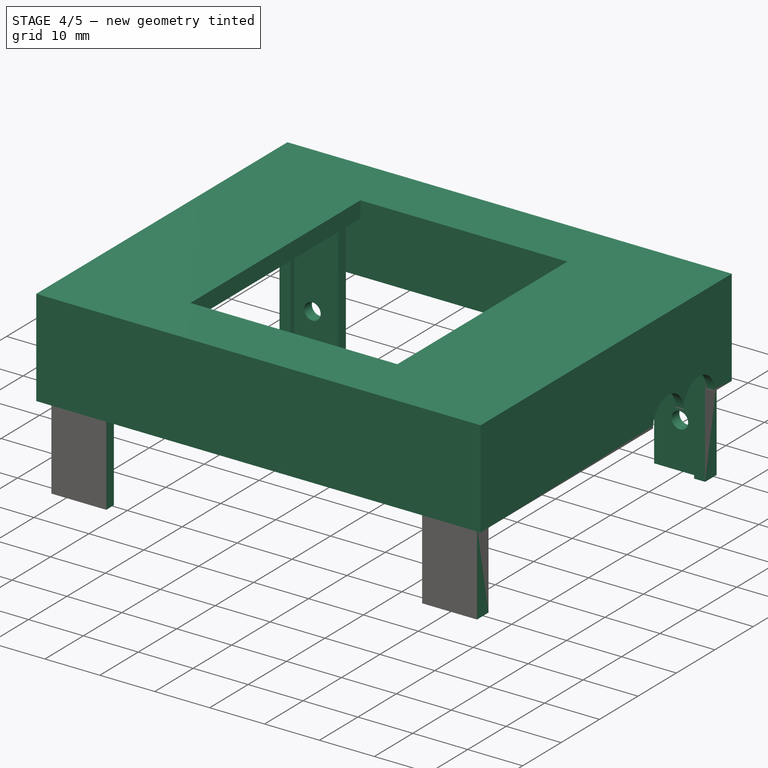
[diagram: stage 4 of 5 — iso view after this stage's code; geometry added in this stage tinted green]
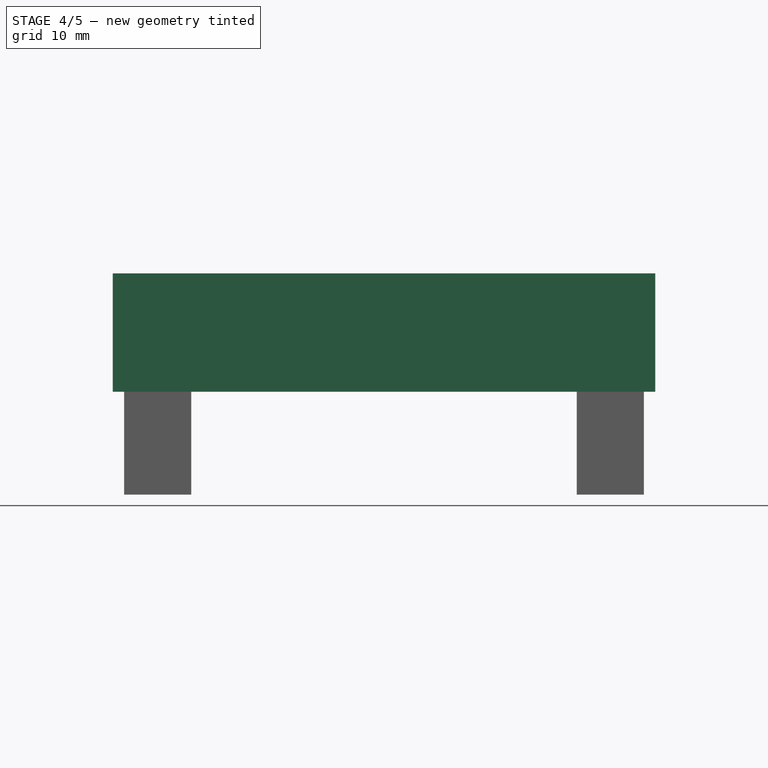
[diagram: stage 4 of 5 — front view after this stage's code; geometry added in this stage tinted green]
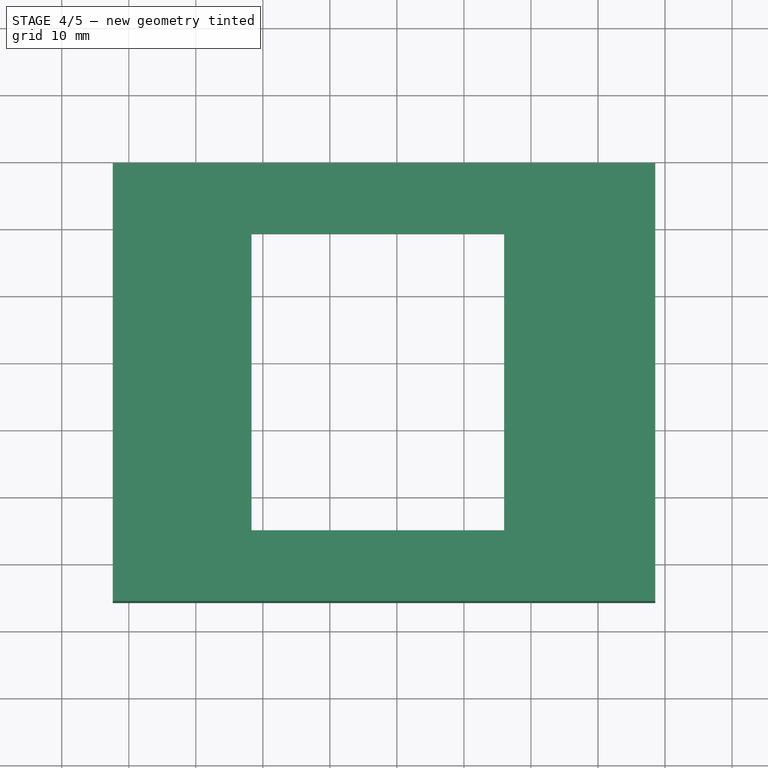
[diagram: stage 4 of 5 — top view after this stage's code; geometry added in this stage tinted green]
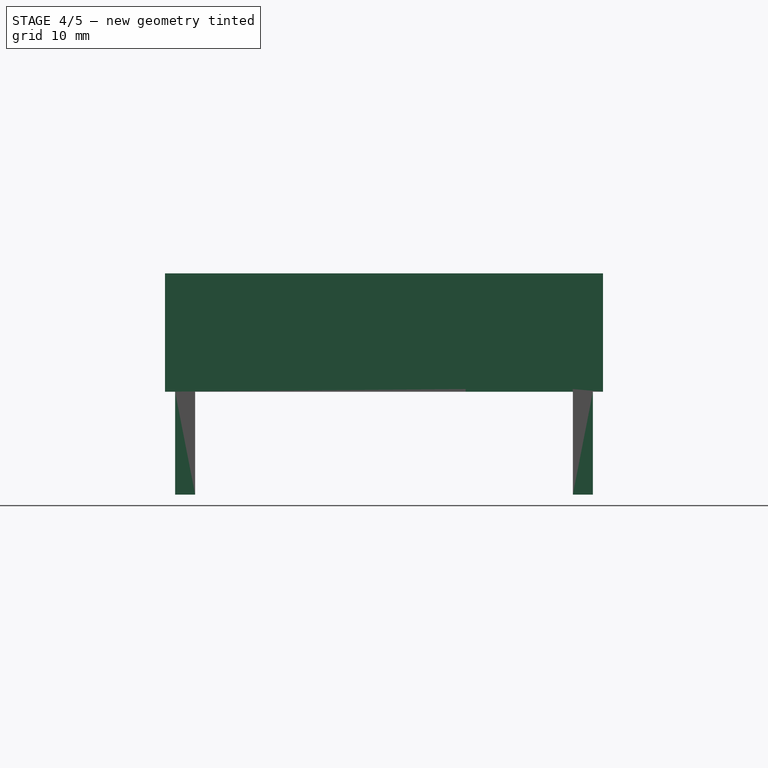
[diagram: stage 4 of 5 — right view after this stage's code; geometry added in this stage tinted green]
FEATURE [PartDesign::SubShapeBinder] Binder006
  BindCopyOnChange = 0
  BindMode = 0
  ClaimChildren = false
  Context = -> Body002 [Binder006.]
  Fuse = false
  MakeFace = true
  OffsetFill = false
  OffsetIntersection = false
  OffsetJoinType = 0
  OffsetOpenResult = false
  PartialLoad = false
  Relative = true
  Support = -> [Body[Pad004.Face43,Pad004.Face44,Pad004.Face42,Pad004.Face41,Pad004.Face5]]
  _Version = 2
FEATURE [PartDesign::SubShapeBinder] Binder007
  BindCopyOnChange = 0
  BindMode = 0
  ClaimChildren = false
  Context = -> Body002 [Binder007.]
  Fuse = false
  MakeFace = true
  OffsetFill = false
  OffsetIntersection = false
  OffsetJoinType = 0
  OffsetOpenResult = false
  PartialLoad = false
  Relative = true
  Support = -> [Body001[Pad006.Face21]]
  _Version = 2
FEATURE [PartDesign::SubShapeBinder] Binder008
  BindCopyOnChange = 0
  BindMode = 0
  ClaimChildren = false
  Context = -> Body002 [Binder008.]
  Fuse = false
  MakeFace = true
  OffsetFill = false
  OffsetIntersection = false
  OffsetJoinType = 0
  OffsetOpenResult = false
  PartialLoad = false
  Relative = true
  Support = -> [Body[Pad004.Face20]]
  _Version = 2
FEATURE [Sketcher::SketchObject] Sketch016
  AttachmentOffset = pos=(0,0,2) rot=(0,0,1;0rad)
  ExternalGeometry = -> [Binder007]
  FullyConstrained = true
  MapMode = 5
  Placement = pos=(0,0,35.654) rot=(0,0,1;0rad)
  Support = -> [Binder006]
  sketch-geometry (4):
    g0: LineSegment StartX=8.54 StartY=59.34 StartZ=0 EndX=-72.39 EndY=59.34 EndZ=0
    g1: LineSegment StartX=-72.39 StartY=59.34 StartZ=0 EndX=-72.39 EndY=-6 EndZ=0
    g2: LineSegment StartX=-72.39 StartY=-6 StartZ=0 EndX=8.54 EndY=-6 EndZ=0
    g3: LineSegment StartX=8.54 StartY=-6 StartZ=0 EndX=8.54 EndY=59.34 EndZ=0
  constraints (10):
    c: Coincident(g0,g1)
    c: Coincident(g1,g2)
    c: Coincident(g2,g3)
    c: Coincident(g3,g0)
    c: Horizontal(g0)
    c: Horizontal(g2)
    c: Vertical(g1)
    c: Vertical(g3)
    c: Coincident(g0,g-3)
    c: Coincident(g1,g-4)
FEATURE [PartDesign::Pad] Pad007
  Direction = (0,0,1)
  Length = 3
  Length2 = 10
  Profile = -> Sketch016
  ReferenceAxis = -> Sketch016 [N_Axis]
  Type = 0
FEATURE [Sketcher::SketchObject] Sketch018
  ExternalGeometry = -> [Binder006]
  FullyConstrained = true
  MapMode = 5
  Placement = pos=(0,0,35.654) rot=(1,0,0;3.14159rad)
  Support = -> [Pad007]
  sketch-geometry (4):
    g0: LineSegment StartX=-51.7 StartY=-4.56 StartZ=0 EndX=-14 EndY=-4.56 EndZ=0
    g1: LineSegment StartX=-14 StartY=-4.56 StartZ=0 EndX=-14 EndY=-48.78 EndZ=0
    g2: LineSegment StartX=-14 StartY=-48.78 StartZ=0 EndX=-51.7 EndY=-48.78 EndZ=0
    g3: LineSegment StartX=-51.7 StartY=-48.78 StartZ=0 EndX=-51.7 EndY=-4.56 EndZ=0
  constraints (10):
    c: Coincident(g0,g1)
    c: Coincident(g1,g2)
    c: Coincident(g2,g3)
    c: Coincident(g3,g0)
    c: Horizontal(g0)
    c: Horizontal(g2)
    c: Vertical(g1)
    c: Vertical(g3)
    c: Coincident(g0,g-3)
    c: Coincident(g1,g-4)
FEATURE [PartDesign::Pocket] Pocket002
  BaseFeature = -> Pad007
  Direction = (0,0,1)
  Length = 5
  Length2 = 5
  Profile = -> Sketch018
  ReferenceAxis = -> Sketch018 [N_Axis]
  Type = 0
FEATURE [Sketcher::SketchObject] Sketch019
  ExternalGeometry = -> [Binder006,Binder007]
  FullyConstrained = true
  MapMode = 5
  Placement = pos=(0,0,35.654) rot=(1,0,0;3.14159rad)
  Support = -> [Pocket002]
  sketch-geometry (17):
    g0: LineSegment StartX=-72.39 StartY=-59.34 StartZ=0 EndX=8.54 EndY=-59.34 EndZ=0
    g1: LineSegment StartX=8.54 StartY=-59.34 StartZ=0 EndX=8.54 EndY=6 EndZ=0
    g2: LineSegment StartX=-72.39 StartY=6 StartZ=0 EndX=-72.39 EndY=-59.34 EndZ=0
    g3: LineSegment StartX=-72.39 StartY=6 StartZ=0 EndX=8.54 EndY=6 EndZ=0
    g4: LineSegment StartX=-70.89 StartY=4.5 StartZ=0 EndX=-70.89 EndY=-57.84 EndZ=0
    g5: LineSegment StartX=-70.89 StartY=-57.84 StartZ=0 EndX=7.04 EndY=-57.84 EndZ=0
    g6: LineSegment StartX=7.04 StartY=-57.84 StartZ=0 EndX=7.04 EndY=4.5 EndZ=0
    g7: LineSegment StartX=7.04 StartY=4.5 StartZ=0 EndX=-70.89 EndY=4.5 EndZ=0
    g8: LineSegment StartX=-70.89 StartY=4.5 StartZ=0 EndX=-70.89 EndY=6 EndZ=0
    g9: LineSegment StartX=-70.89 StartY=4.5 StartZ=0 EndX=-72.39 EndY=4.5 EndZ=0
    g10: LineSegment StartX=7.04 StartY=4.5 StartZ=0 EndX=8.54 EndY=4.5 EndZ=0
    g11: LineSegment StartX=7.04 StartY=4.5 StartZ=0 EndX=7.04 EndY=6 EndZ=0
    g12: LineSegment StartX=7.04 StartY=-57.84 StartZ=0 EndX=8.54 EndY=-57.84 EndZ=0
    g13: LineSegment StartX=7.04 StartY=-57.84 StartZ=0 EndX=7.04 EndY=-59.34 EndZ=0
    g14: LineSegment StartX=-70.89 StartY=-57.84 StartZ=0 EndX=-70.89 EndY=-59.34 EndZ=0
    g15: LineSegment StartX=-70.89 StartY=-57.84 StartZ=0 EndX=-72.39 EndY=-57.84 EndZ=0
    g16: LineSegment StartX=-70.89 StartY=-57.84 StartZ=0 EndX=-70.89 EndY=-59.34 EndZ=0
  constraints (49):
    c: Coincident(g0,g1)
    c: Coincident(g2,g0)
    c: Horizontal(g0)
    c: Vertical(g1)
    c: Vertical(g2)
    c: Coincident(g0,g-6)
    c: Coincident(g1,g-5)
    c: PointOnObject(g3,g-4)
    c: Coincident(g3,g1)
    c: Vertical(g4)
    c: Coincident(g5,g4)
    c: Horizontal(g5)
    c: Coincident(g6,g5)
    c: Vertical(g6)
    c: Coincident(g7,g6)
    c: Horizontal(g7)
    c: Vertical(g8)
    c: PointOnObject(g9,g2)
    c: Horizontal(g9)
    c: Coincident(g10,g6)
    c: PointOnObject(g10,g1)
    c: Horizontal(g10)
    c: Coincident(g11,g6)
    c: PointOnObject(g11,g3)
    c: Vertical(g11)
    c: Coincident(g12,g5)
    c: PointOnObject(g12,g1)
    c: Horizontal(g12)
    c: Coincident(g13,g5)
    c: PointOnObject(g13,g0)
    c: Vertical(g13)
    c: Coincident(g14,g4)
    c: PointOnObject(g14,g0)
    c: Vertical(g14)
    c: Coincident(g15,g4)
    c: PointOnObject(g15,g2)
    c: Horizontal(g15)
    c: Equal(g9,g8)
    c: Equal(g15,g14)
    c: Equal(g13,g12)
    c: Equal(g12,g11)
    c: Coincident(g16,g-7)
    c: PointOnObject(g16,g0)
    c: Vertical(g16)
    c: Equal(g16,g14)
    c: Coincident(g3,g2)
    c: Coincident(g7,g4)
    c: Coincident(g8,g4)
    c: Coincident(g9,g4)
FEATURE [PartDesign::Pad] Pad008
  BaseFeature = -> Pocket002
  Direction = (0,0,-1)
  Length = 14.65
  Length2 = 10
  Profile = -> Sketch019
  ReferenceAxis = -> Sketch019 [N_Axis]
  Type = 0
FEATURE [Sketcher::SketchObject] Sketch020
  ExternalGeometry = -> [Pad008]
  FullyConstrained = true
  MapMode = 5
  Placement = pos=(8.54,0,0) rot=(0.57735,0.57735,0.57735;2.0944rad)
  Support = -> [Pad008]
  sketch-geometry (4):
    g0: Circle CenterX=50.84 CenterY=21.004 CenterZ=0 NormalX=0 NormalY=0 NormalZ=1 AngleXU=0 Radius=4
    g1: Circle CenterX=42.84 CenterY=21.004 CenterZ=0 NormalX=0 NormalY=0 NormalZ=1 AngleXU=0 Radius=4
    g2: GeomPoint X=46.84 Y=21.004 Z=0
    g3: GeomPoint X=54.84 Y=21.004 Z=0
  constraints (10):
    c: PointOnObject(g0,g-3)
    c: PointOnObject(g1,g-3)
    c: Equal(g0,g1)
    c: Diameter(g0) = 8
    c: PointOnObject(g2,g1)
    c: PointOnObject(g2,g-3)
    c: PointOnObject(g2,g0)
    c: PointOnObject(g3,g0)
    c: PointOnObject(g3,g-3)
    c: Distance(g3,g-4) = 3
FEATURE [PartDesign::Pocket] Pocket003
  BaseFeature = -> Pad008
  Direction = (-1,0,0)
  Length = 5
  Length2 = 5
  Profile = -> Sketch020
  ReferenceAxis = -> Sketch020 [N_Axis]
  Type = 0
FEATURE [Sketcher::SketchObject] Sketch022
  ExternalGeometry = -> [Pocket003]
  FullyConstrained = true
  MapMode = 5
  Placement = pos=(0,0,35.654) rot=(1,0,0;3.14159rad)
  Support = -> [Pocket003]
  sketch-geometry (28):
    g0: LineSegment StartX=6.84 StartY=4.5 StartZ=0 EndX=6.84 EndY=1.5 EndZ=0
    g1: LineSegment StartX=6.84 StartY=1.5 StartZ=0 EndX=4.84 EndY=1.5 EndZ=0
    g2: LineSegment StartX=4.84 StartY=1.5 StartZ=0 EndX=4.84 EndY=2.5 EndZ=0
    g3: LineSegment StartX=4.84 StartY=2.5 StartZ=0 EndX=-3.16 EndY=2.5 EndZ=0
    g4: LineSegment StartX=-3.16 StartY=2.5 StartZ=0 EndX=-3.16 EndY=4.5 EndZ=0
    g5: LineSegment StartX=-70.69 StartY=4.5 StartZ=0 EndX=-70.69 EndY=1.5 EndZ=0
    g6: LineSegment StartX=-70.69 StartY=1.5 StartZ=0 EndX=-68.69 EndY=1.5 EndZ=0
    g7: LineSegment StartX=-68.69 StartY=1.5 StartZ=0 EndX=-68.69 EndY=2.5 EndZ=0
    g8: LineSegment StartX=-68.69 StartY=2.5 StartZ=0 EndX=-60.69 EndY=2.5 EndZ=0
    g9: LineSegment StartX=-60.69 StartY=2.5 StartZ=0 EndX=-60.69 EndY=4.5 EndZ=0
    g10: LineSegment StartX=-60.69 StartY=4.5 StartZ=0 EndX=-70.69 EndY=4.5 EndZ=0
    g11: LineSegment StartX=-3.16 StartY=4.5 StartZ=0 EndX=6.84 EndY=4.5 EndZ=0
    g12: LineSegment StartX=-70.69 StartY=-57.84 StartZ=0 EndX=-70.69 EndY=-54.84 EndZ=0
    g13: LineSegment StartX=-70.69 StartY=-54.84 StartZ=0 EndX=-68.69 EndY=-54.84 EndZ=0
    g14: LineSegment StartX=-68.69 StartY=-54.84 StartZ=0 EndX=-68.69 EndY=-55.84 EndZ=0
    g15: LineSegment StartX=-68.69 StartY=-55.84 StartZ=0 EndX=-60.69 EndY=-55.84 EndZ=0
    g16: LineSegment StartX=-60.69 StartY=-55.84 StartZ=0 EndX=-60.69 EndY=-57.84 EndZ=0
    g17: LineSegment StartX=-60.69 StartY=-57.84 StartZ=0 EndX=-70.69 EndY=-57.84 EndZ=0
    g18: LineSegment StartX=6.84 StartY=-57.84 StartZ=0 EndX=6.84 EndY=-54.84 EndZ=0
    g19: LineSegment StartX=6.84 StartY=-54.84 StartZ=0 EndX=4.84 EndY=-54.84 EndZ=0
    g20: LineSegment StartX=4.84 StartY=-54.84 StartZ=0 EndX=4.84 EndY=-55.84 EndZ=0
    g21: LineSegment StartX=4.84 StartY=-55.84 StartZ=0 EndX=-3.16 EndY=-55.84 EndZ=0
    g22: LineSegment StartX=-3.16 StartY=-55.84 StartZ=0 EndX=-3.16 EndY=-57.84 EndZ=0
    g23: LineSegment StartX=-3.16 StartY=-57.84 StartZ=0 EndX=6.84 EndY=-57.84 EndZ=0
    g24: LineSegment StartX=7.04 StartY=-54.84 StartZ=0 EndX=6.84 EndY=-54.84 EndZ=0
    g25: LineSegment StartX=6.84 StartY=1.5 StartZ=0 EndX=7.04 EndY=1.5 EndZ=0
    g26: LineSegment StartX=-70.89 StartY=-54.84 StartZ=0 EndX=-70.69 EndY=-54.84 EndZ=0
    g27: LineSegment StartX=-70.69 StartY=1.5 StartZ=0 EndX=-70.89 EndY=1.5 EndZ=0
  constraints (83):
    c: Horizontal(g1)
    c: Coincident(g2,g1)
    c: Vertical(g2)
    c: Coincident(g3,g2)
    c: Horizontal(g3)
    c: Coincident(g4,g3)
    c: PointOnObject(g4,g-4)
    c: Vertical(g4)
    c: Equal(g1,g4)
    c: Coincident(g6,g5)
    c: Coincident(g7,g6)
    c: Vertical(g7)
    c: Coincident(g8,g7)
    c: Horizontal(g8)
    c: Coincident(g9,g8)
    c: PointOnObject(g9,g-4)
    c: Vertical(g9)
    c: Coincident(g10,g9)
    c: Horizontal(g6)
    c: Equal(g6,g9)
    c: Equal(g8,g3)
    c: Equal(g2,g7)
    c: Equal(g4,g9)
    c: Coincident(g11,g4)
    c: Coincident(g13,g12)
    c: Horizontal(g13)
    c: Coincident(g14,g13)
    c: Vertical(g14)
    c: Coincident(g15,g14)
    c: Horizontal(g15)
    c: Coincident(g16,g15)
    c: PointOnObject(g16,g-6)
    c: Vertical(g16)
    c: Coincident(g17,g16)
    c: Horizontal(g19)
    c: Coincident(g20,g19)
    c: Vertical(g20)
    c: Coincident(g21,g20)
    c: Coincident(g22,g21)
    c: PointOnObject(g22,g-6)
    c: Coincident(g23,g22)
    c: Horizontal(g21)
    c: Vertical(g22)
    c: Equal(g22,g19)
    c: Equal(g22,g16)
    c: Equal(g16,g13)
    c: Equal(g21,g15)
    c: Equal(g14,g20)
    c: Equal(g15,g8)
    c: Equal(g1,g19)
    c: Distance(g19) = 2
    c: Equal(g18,g0)
    c: Distance(g23) = 10
    c: Coincident(g0,g1)
    c: Coincident(g0,g11)
    c: PointOnObject(g0,g-4)
    c: Vertical(g0)
    c: Distance(g-4,g0) = 0.2
    c: Coincident(g18,g23)
    c: Coincident(g18,g19)
    c: PointOnObject(g18,g-6)
    c: Vertical(g18)
    c: Coincident(g24,g-7)
    c: Coincident(g24,g18)
    c: Horizontal(g24)
    c: Coincident(g25,g0)
    c: PointOnObject(g25,g-3)
    c: Horizontal(g25)
    c: Equal(g25,g24)
    c: Coincident(g17,g12)
    c: Vertical(g12)
    c: PointOnObject(g26,g-5)
    c: Coincident(g26,g12)
    c: Horizontal(g26)
    c: PointOnObject(g12,g-6)
    c: Equal(g26,g24)
    c: Coincident(g10,g5)
    c: PointOnObject(g5,g-4)
    c: Coincident(g27,g5)
    c: PointOnObject(g27,g-5)
    c: Horizontal(g27)
    c: Equal(g27,g25)
    c: Vertical(g5)
FEATURE [PartDesign::Pad] Pad009
  BaseFeature = -> Pocket003
  Direction = (0,0,-1)
  Length = 30
  Length2 = 10
  Profile = -> Sketch022
  ReferenceAxis = -> Sketch022 [N_Axis]
  Type = 0
FEATURE [PartDesign::SubShapeBinder] Binder009
  BindCopyOnChange = 0
  BindMode = 0
  ClaimChildren = false
  Context = -> Body002 [Binder009.]
  Fuse = false
  MakeFace = true
  OffsetFill = false
  OffsetIntersection = false
  OffsetJoinType = 0
  OffsetOpenResult = false
  PartialLoad = false
  Relative = true
  Support = -> [Body001[Pocket006.Edge69,Pocket006.Edge114,Pocket006.Edge67,Pocket006.Edge112]]
  _Version = 2
FEATURE [Sketcher::SketchObject] Sketch025
  ExternalGeometry = -> [Binder009]
  FullyConstrained = true
  MapMode = 5
  Placement = pos=(0,57.84,0) rot=(1,0,0;1.5708rad)
  Support = -> [Pad009]
  sketch-geometry (2):
    g0: Circle CenterX=-65.39 CenterY=14 CenterZ=0 NormalX=0 NormalY=0 NormalZ=1 AngleXU=0 Radius=1.5
    g1: Circle CenterX=1.54 CenterY=14 CenterZ=0 NormalX=0 NormalY=0 NormalZ=1 AngleXU=0 Radius=1.5
  constraints (4):
    c: Coincident(g0,g-4)
    c: Coincident(g1,g-3)
    c: Equal(g1,g-3)
    c: Equal(g0,g-4)
FEATURE [PartDesign::Pocket] Pocket007
  BaseFeature = -> Pad009
  Direction = (0,1,-2e-16)
  Length = 5
  Length2 = 5
  Profile = -> Sketch025
  ReferenceAxis = -> Sketch025 [N_Axis]
  Reversed = true
  Type = 0
FEATURE [PartDesign::Fillet] Fillet003
  Base = -> Pad011 [Edge208,Edge214,Edge224,Edge230]
  BaseFeature = -> Pad011
  Radius = 1
  SupportTransform = false
  UseAllEdges = false
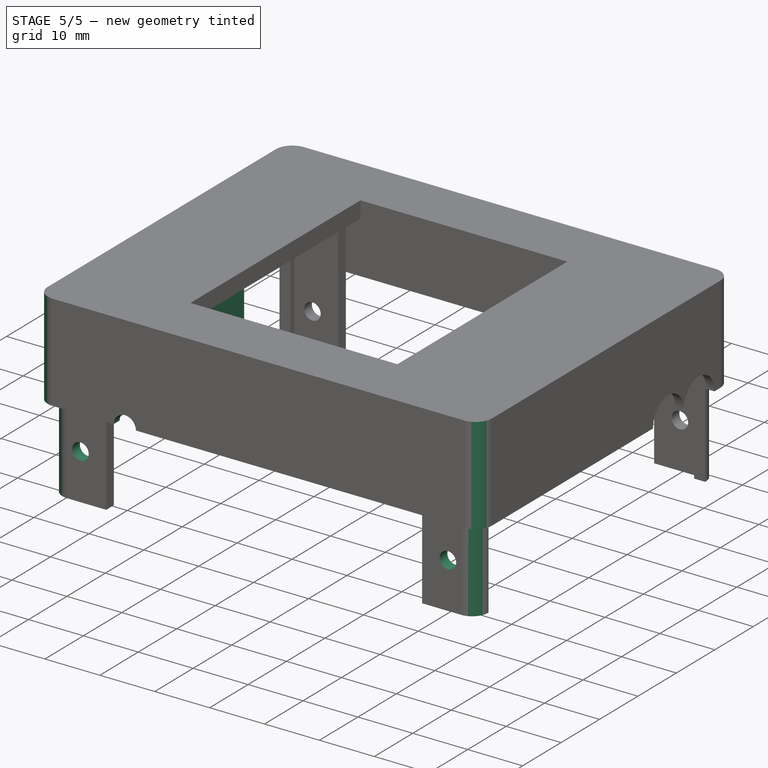
[diagram: stage 5 of 5 — iso view after this stage's code; geometry added in this stage tinted green]
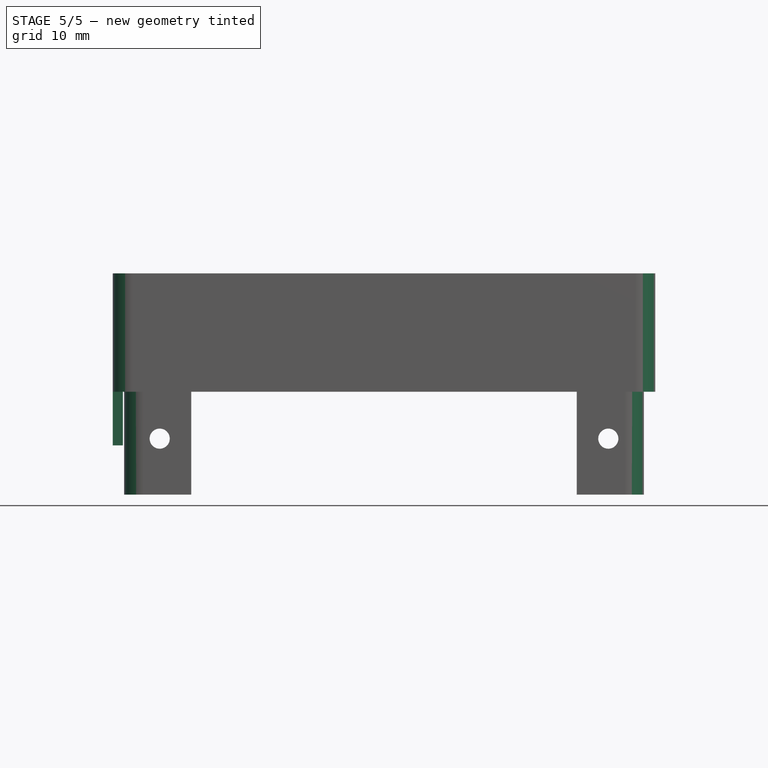
[diagram: stage 5 of 5 — front view after this stage's code; geometry added in this stage tinted green]
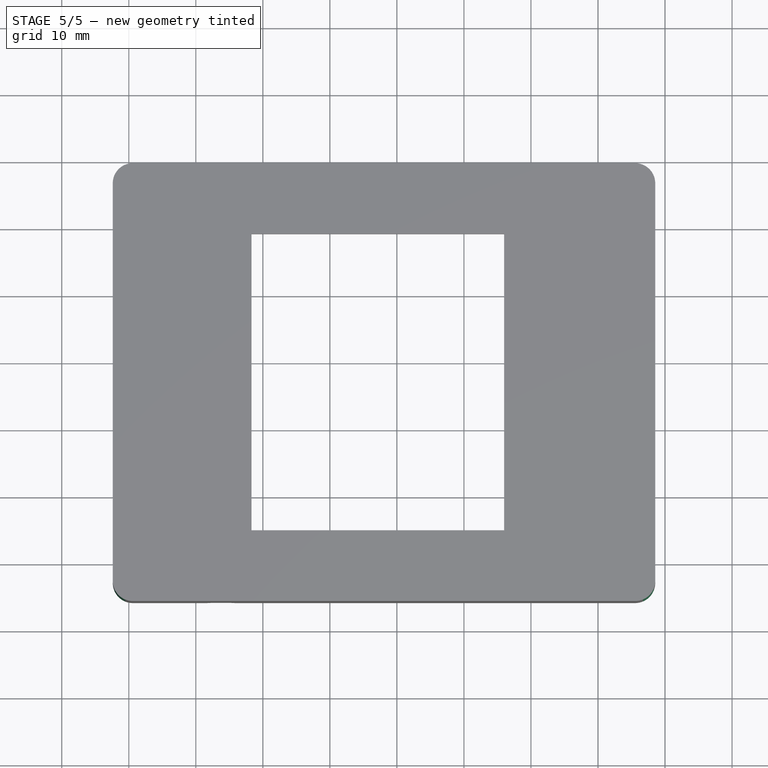
[diagram: stage 5 of 5 — top view after this stage's code; geometry added in this stage tinted green]
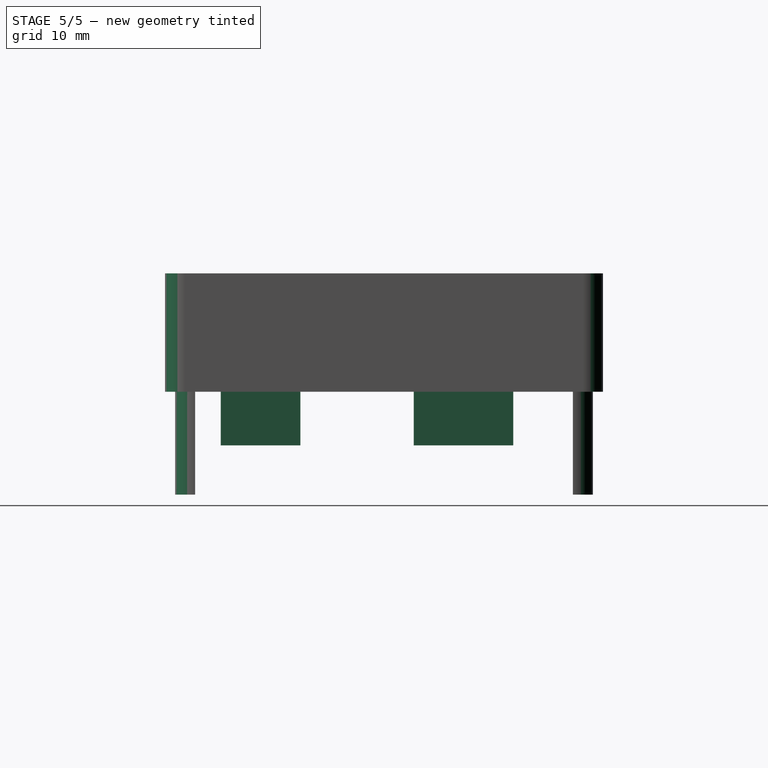
[diagram: stage 5 of 5 — right view after this stage's code; geometry added in this stage tinted green]
FEATURE [Sketcher::SketchObject] Sketch026
  ExternalGeometry = -> [Binder009]
  FullyConstrained = true
  MapMode = 5
  Placement = pos=(0,-4.5,0) rot=(0,0.707107,0.707107;3.14159rad)
  Support = -> [Pocket007]
  sketch-geometry (2):
    g0: Circle CenterX=-1.54 CenterY=14 CenterZ=0 NormalX=0 NormalY=0 NormalZ=1 AngleXU=0 Radius=1.5
    g1: Circle CenterX=65.39 CenterY=14 CenterZ=0 NormalX=0 NormalY=0 NormalZ=1 AngleXU=0 Radius=1.5
  constraints (4):
    c: Coincident(g0,g-4)
    c: Coincident(g1,g-3)
    c: Equal(g1,g-3)
    c: Equal(g0,g-4)
FEATURE [PartDesign::Pocket] Pocket008
  BaseFeature = -> Pocket007
  Direction = (0,-1,2e-16)
  Length = 5
  Length2 = 5
  Profile = -> Sketch026
  ReferenceAxis = -> Sketch026 [N_Axis]
  Reversed = true
  Type = 0
FEATURE [PartDesign::SubShapeBinder] Binder010
  BindCopyOnChange = 0
  BindMode = 0
  ClaimChildren = false
  Context = -> Body002 [Binder010.]
  Fuse = false
  MakeFace = true
  OffsetFill = false
  OffsetIntersection = false
  OffsetJoinType = 0
  OffsetOpenResult = false
  PartialLoad = false
  Relative = true
  Support = -> [Part__Feature[Face816,Face799]]
  _Version = 2
FEATURE [PartDesign::SubShapeBinder] Binder011
  BindCopyOnChange = 0
  BindMode = 0
  ClaimChildren = false
  Context = -> Body002 [Binder011.]
  Fuse = false
  MakeFace = true
  OffsetFill = false
  OffsetIntersection = false
  OffsetJoinType = 0
  OffsetOpenResult = false
  PartialLoad = false
  Relative = true
  Support = -> [Body001[Pocket006.Face33,Pocket006.Face21,Pocket006.Face35]]
  _Version = 2
FEATURE [Sketcher::SketchObject] Sketch027
  ExternalGeometry = -> [Binder007,Binder011]
  FullyConstrained = true
  MapMode = 5
  Placement = pos=(0,0,21.004) rot=(1,0,0;3.14159rad)
  Support = -> [Pocket008]
  sketch-geometry (8):
    g0: LineSegment StartX=-72.39 StartY=-31.1009 StartZ=0 EndX=-70.89 EndY=-31.1009 EndZ=0
    g1: LineSegment StartX=-70.89 StartY=-31.1009 StartZ=0 EndX=-70.89 EndY=-45.95 EndZ=0
    g2: LineSegment StartX=-70.89 StartY=-45.95 StartZ=0 EndX=-72.39 EndY=-45.95 EndZ=0
    g3: LineSegment StartX=-72.39 StartY=-45.95 StartZ=0 EndX=-72.39 EndY=-31.1009 EndZ=0
    g4: LineSegment StartX=-72.39 StartY=-2.31 StartZ=0 EndX=-70.89 EndY=-2.31 EndZ=0
    g5: LineSegment StartX=-70.89 StartY=-2.31 StartZ=0 EndX=-70.89 EndY=-14.2 EndZ=0
    g6: LineSegment StartX=-70.89 StartY=-14.2 StartZ=0 EndX=-72.39 EndY=-14.2 EndZ=0
    g7: LineSegment StartX=-72.39 StartY=-14.2 StartZ=0 EndX=-72.39 EndY=-2.31 EndZ=0
  constraints (20):
    c: Coincident(g0,g1)
    c: Coincident(g1,g2)
    c: Coincident(g2,g3)
    c: Coincident(g3,g0)
    c: Horizontal(g0)
    c: Horizontal(g2)
    c: Vertical(g1)
    c: Vertical(g3)
    c: Coincident(g0,g-6)
    c: Coincident(g1,g-5)
    c: Coincident(g4,g5)
    c: Coincident(g5,g6)
    c: Coincident(g6,g7)
    c: Coincident(g7,g4)
    c: Horizontal(g4)
    c: Horizontal(g6)
    c: Vertical(g5)
    c: Vertical(g7)
    c: Coincident(g4,g-3)
    c: Coincident(g5,g-4)
FEATURE [PartDesign::Pad] Pad010
  BaseFeature = -> Pocket008
  Direction = (0,0,-1)
  Length = 8
  Length2 = 10
  Profile = -> Sketch027
  ReferenceAxis = -> Sketch027 [N_Axis]
  Type = 0
FEATURE [PartDesign::Pocket] Pocket010
  BaseFeature = -> Pad010
  Direction = (0,1,-2e-16)
  Length = 5
  Length2 = 5
  Profile = -> Sketch028
  ReferenceAxis = -> Sketch028 [N_Axis]
  Type = 0
FEATURE [PartDesign::Fillet] Fillet002
  Base = -> Pocket010 [Edge11,Edge2,Edge12,Edge1,Edge25,Edge8,Edge20,Edge5]
  BaseFeature = -> Pocket010
  Radius = 3
  SupportTransform = false
  UseAllEdges = false
FEATURE [PartDesign::Body] Body001  label="lower-housing-part"
  Group = -> [Binder002,Sketch004,Binder003,Pad003,Sketch005,Sketch006,AdditiveLoft,Sketch008,Sketch009,AdditiveLoft001,Sketch010,Sketch011,AdditiveLoft002,Sketch012,Sketch013,AdditiveLoft003,Sketch014,Pad005,Sketch015,Binder004,Binder005,Pad006,Sketch017,Pocket001,Sketch021,Pocket004,Sketch023,Pocket005,Sketch024,Pocket006,Sketch029,Pocket009,Fillet,Fillet001,Sketch030,Pad011,Fillet003]
  Origin = -> Origin001
  Tip = -> Fillet003
FEATURE [PartDesign::Fillet] Fillet004
  Base = -> Fillet002
  BaseFeature = -> Fillet002
  Radius = 2
  SupportTransform = false
  UseAllEdges = false
FEATURE [PartDesign::Fillet] Fillet005
  Base = -> Fillet004 [Edge90,Edge174,Edge198,Edge85]
  BaseFeature = -> Fillet004
  Radius = 2.9
  SupportTransform = false
  UseAllEdges = false
FEATURE [Sketcher::SketchObject] Sketch031
  ExternalGeometry = -> [Fillet005]
  FullyConstrained = true
  MapMode = 5
  Placement = pos=(0,0,35.654) rot=(1,0,0;3.14159rad)
  Support = -> [Fillet005]
  sketch-geometry (16):
    g0: LineSegment StartX=-68.69 StartY=-54.84 StartZ=0 EndX=-70.89 EndY=-54.84 EndZ=0
    g1: LineSegment StartX=-70.89 StartY=-54.84 StartZ=0 EndX=-70.89 EndY=-57.84 EndZ=0
    g2: LineSegment StartX=-70.89 StartY=-57.84 StartZ=0 EndX=-68.69 EndY=-57.84 EndZ=0
    g3: LineSegment StartX=-68.69 StartY=-57.84 StartZ=0 EndX=-68.69 EndY=-54.84 EndZ=0
    g4: LineSegment StartX=-68.69 StartY=1.5 StartZ=0 EndX=-70.89 EndY=1.5 EndZ=0
    g5: LineSegment StartX=-70.89 StartY=1.5 StartZ=0 EndX=-70.89 EndY=4.5 EndZ=0
    g6: LineSegment StartX=-70.89 StartY=4.5 StartZ=0 EndX=-68.69 EndY=4.5 EndZ=0
    g7: LineSegment StartX=-68.69 StartY=4.5 StartZ=0 EndX=-68.69 EndY=1.5 EndZ=0
    g8: LineSegment StartX=4.84 StartY=1.5 StartZ=0 EndX=7.04 EndY=1.5 EndZ=0
    g9: LineSegment StartX=7.04 StartY=1.5 StartZ=0 EndX=7.04 EndY=4.5 EndZ=0
    g10: LineSegment StartX=7.04 StartY=4.5 StartZ=0 EndX=4.84 EndY=4.5 EndZ=0
    g11: LineSegment StartX=4.84 StartY=4.5 StartZ=0 EndX=4.84 EndY=1.5 EndZ=0
    g12: LineSegment StartX=4.84 StartY=-54.84 StartZ=0 EndX=7.04 EndY=-54.84 EndZ=0
    g13: LineSegment StartX=7.04 StartY=-54.84 StartZ=0 EndX=7.04 EndY=-57.84 EndZ=0
    g14: LineSegment StartX=7.04 StartY=-57.84 StartZ=0 EndX=4.84 EndY=-57.84 EndZ=0
    g15: LineSegment StartX=4.84 StartY=-57.84 StartZ=0 EndX=4.84 EndY=-54.84 EndZ=0
  constraints (40):
    c: Coincident(g0,g1)
    c: Coincident(g1,g2)
    c: Coincident(g2,g3)
    c: Coincident(g3,g0)
    c: Horizontal(g0)
    c: Horizontal(g2)
    c: Vertical(g1)
    c: Vertical(g3)
    c: Coincident(g0,g-9)
    c: Coincident(g1,g-10)
    c: Coincident(g4,g5)
    c: Coincident(g5,g6)
    c: Coincident(g6,g7)
    c: Coincident(g7,g4)
    c: Horizontal(g4)
    c: Horizontal(g6)
    c: Vertical(g5)
    c: Vertical(g7)
    c: Coincident(g4,g-7)
    c: Coincident(g5,g-8)
    c: Coincident(g8,g9)
    c: Coincident(g9,g10)
    c: Coincident(g10,g11)
    c: Coincident(g11,g8)
    c: Horizontal(g8)
    c: Horizontal(g10)
    c: Vertical(g9)
    c: Vertical(g11)
    c: Coincident(g8,g-3)
    c: Coincident(g9,g-4)
    c: Coincident(g12,g13)
    c: Coincident(g13,g14)
    c: Coincident(g14,g15)
    c: Coincident(g15,g12)
    c: Horizontal(g12)
    c: Horizontal(g14)
    c: Vertical(g13)
    c: Vertical(g15)
    c: Coincident(g12,g-6)
    c: Coincident(g13,g-5)
FEATURE [PartDesign::Pad] Pad012
  BaseFeature = -> Fillet005
  Direction = (0,0,-1)
  Length = 14.65
  Length2 = 10
  Profile = -> Sketch031
  ReferenceAxis = -> Sketch031 [N_Axis]
  Type = 0
FEATURE [Sketcher::SketchObject] Sketch032
  ExternalGeometry = -> [Pad012]
  FullyConstrained = true
  MapMode = 5
  Placement = pos=(0,0,38.654) rot=(0,0,1;0rad)
  Support = -> [Pad012]
  sketch-geometry (17):
    g0: LineSegment StartX=-49.9679 StartY=47.78 StartZ=0 EndX=-49.9679 EndY=49.78 EndZ=0
    g1: LineSegment StartX=-49.9679 StartY=49.78 StartZ=0 EndX=-51.7 EndY=50.78 EndZ=0
    g2: LineSegment StartX=-51.7 StartY=50.78 StartZ=0 EndX=-53.4321 EndY=49.78 EndZ=0
    g3: LineSegment StartX=-53.4321 StartY=49.78 StartZ=0 EndX=-53.4321 EndY=47.78 EndZ=0
    g4: LineSegment StartX=-53.4321 StartY=47.78 StartZ=0 EndX=-51.7 EndY=46.78 EndZ=0
    g5: LineSegment StartX=-51.7 StartY=46.78 StartZ=0 EndX=-49.9679 EndY=47.78 EndZ=0
    g6: Circle CenterX=-51.7 CenterY=48.78 CenterZ=0 NormalX=0 NormalY=0 NormalZ=1 AngleXU=0 Radius=2
    g7: LineSegment StartX=-49.7179 StartY=43.347 StartZ=0 EndX=-47.9859 EndY=44.347 EndZ=0
    g8: LineSegment StartX=-47.9859 StartY=44.347 StartZ=0 EndX=-47.9859 EndY=46.347 EndZ=0
    g9: LineSegment StartX=-47.9859 StartY=46.347 StartZ=0 EndX=-49.7179 EndY=47.347 EndZ=0
    g10: LineSegment StartX=-49.7179 StartY=47.347 StartZ=0 EndX=-51.45 EndY=46.347 EndZ=0
    g11: LineSegment StartX=-51.45 StartY=46.347 StartZ=0 EndX=-51.45 EndY=44.347 EndZ=0
    g12: LineSegment StartX=-51.45 StartY=44.347 StartZ=0 EndX=-49.7179 EndY=43.347 EndZ=0
    g13: Circle CenterX=-49.7179 CenterY=45.347 CenterZ=0 NormalX=0 NormalY=0 NormalZ=1 AngleXU=0 Radius=2
    g14: LineSegment StartX=-49.9679 StartY=47.78 StartZ=0 EndX=-49.7179 EndY=47.347 EndZ=0
    g15: LineSegment StartX=-49.7179 StartY=47.347 StartZ=0 EndX=-49.4679 EndY=47.78 EndZ=0
    g16: LineSegment StartX=-49.4679 StartY=47.78 StartZ=0 EndX=-49.9679 EndY=47.78 EndZ=0
  constraints (40):
    c: Coincident(g0,g1)
    c: Coincident(g1,g2)
    c: Coincident(g2,g3)
    c: Coincident(g3,g4)
    c: Coincident(g4,g5)
    c: Coincident(g5,g0)
    c: Equal(g0, g1-g5) x5
    c: PointOnObject(g0,g6)
    c: PointOnObject(g1,g6)
    c: PointOnObject(g2,g6)
    c: PointOnObject(g3,g6)
    c: PointOnObject(g4,g6)
    c: PointOnObject(g5,g6)
    c: Diameter(g6) = 4
    c: Vertical(g3)
    c: Coincident(g7,g8)
    c: Coincident(g8,g9)
    c: Coincident(g9,g10)
    c: Coincident(g10,g11)
    c: Coincident(g11,g12)
    c: Coincident(g12,g7)
    c: Equal(g7, g8-g12) x5
    c: PointOnObject(g7,g13)
    c: PointOnObject(g8,g13)
    c: PointOnObject(g9,g13)
    c: PointOnObject(g10,g13)
    c: PointOnObject(g11,g13)
    c: PointOnObject(g12,g13)
    c: Equal(g13,g6)
    c: Coincident(g14,g0)
    c: Coincident(g14,g9)
    c: Coincident(g15,g9)
    c: Coincident(g16,g15)
    c: Coincident(g16,g0)
    c: Equal(g16,g14)
    c: Equal(g14,g15)
    c: Horizontal(g16)
    c: Parallel(g10,g5)
    c: Coincident(g6,g-3)
    c: Distance(g14) = 0.5
FEATURE [PartDesign::Body] Body002  label="upper-housing-part"
  Group = -> [Binder006,Binder007,Binder008,Sketch016,Pad007,Sketch018,Pocket002,Sketch019,Pad008,Sketch020,Pocket003,Sketch022,Pad009,Binder009,Sketch025,Pocket007,Sketch026,Pocket008,Sketch027,Binder010,Binder011,Pad010,Sketch028,Pocket010,Fillet002,Fillet004,Fillet005,Sketch031,Pad012,Sketch032]
  Origin = -> Origin002
  Tip = -> Pad012
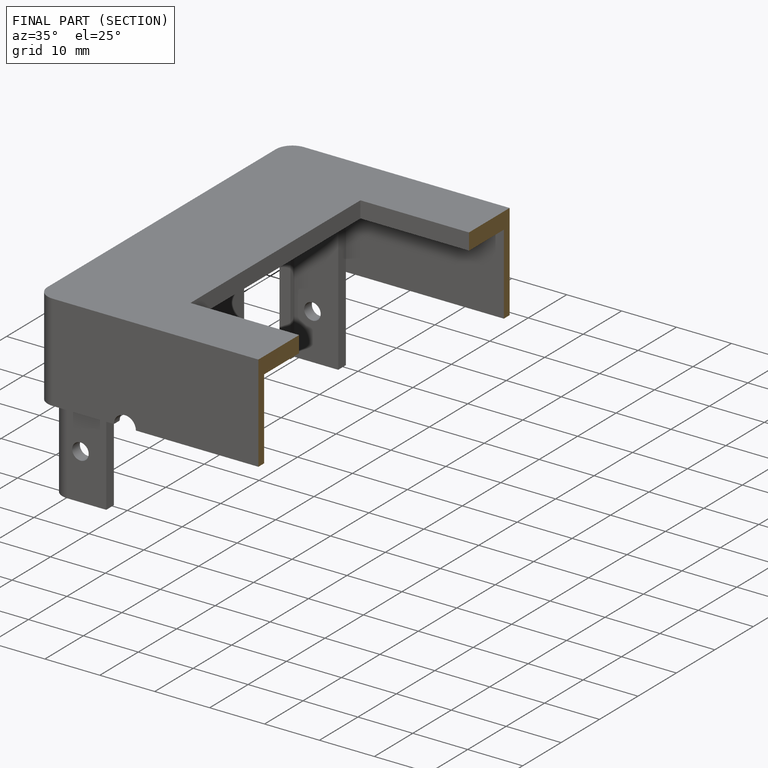
[diagram: finished part — half-section view (interior)]
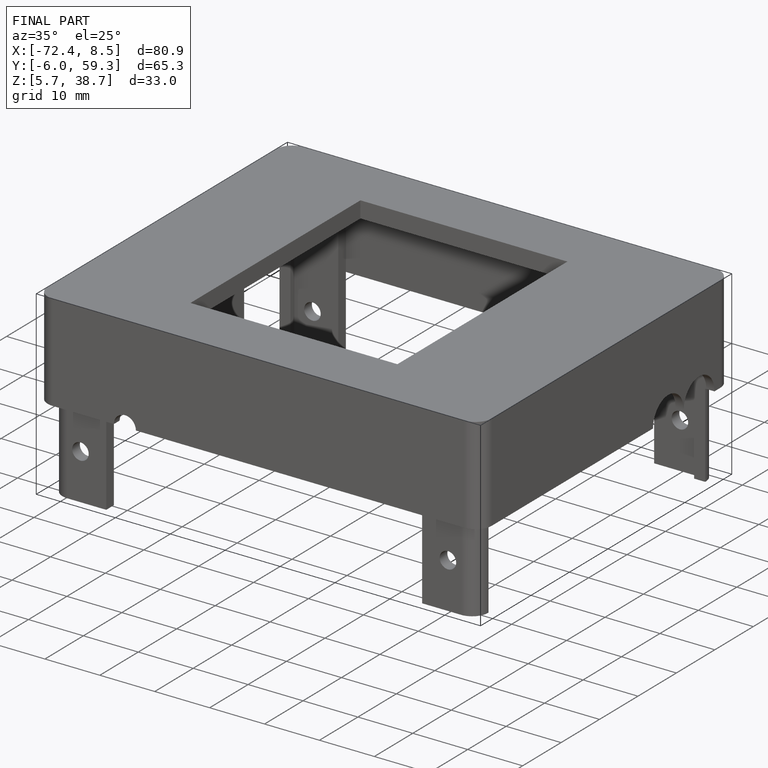
[diagram: finished part — iso view with bounding-box wireframe]
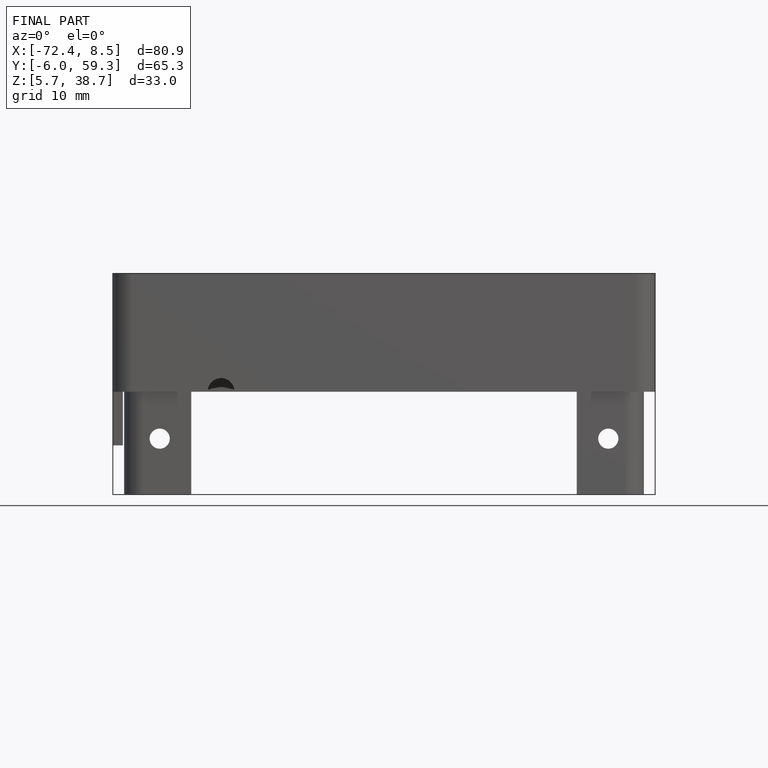
[diagram: finished part — front view with bounding-box wireframe]
